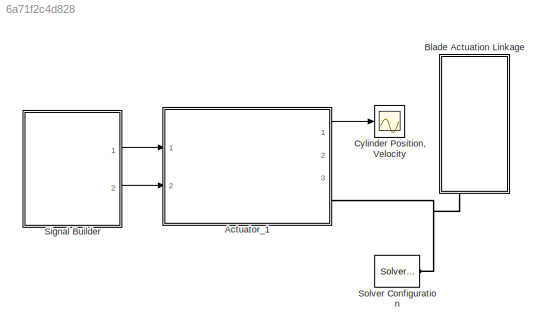
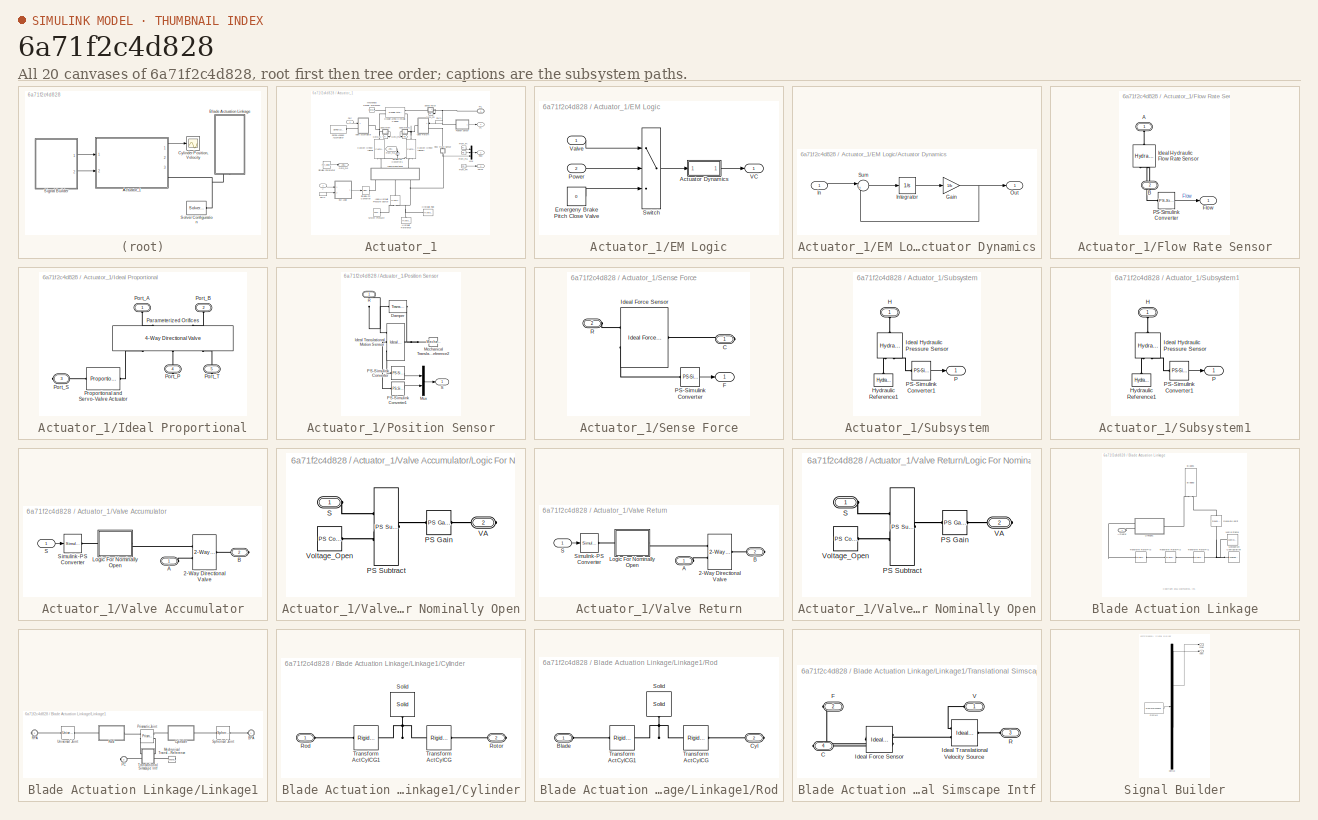
[diagram: thumbnail index - all 20 canvases of the model, root first then tree order]
MODEL slx_6a71f2c4d828
KIND model
CONFIG PostLoadFcn = warning off Simulink:Engine:OutputNotConnected\nwarning off Simulink:Engine:UINotUpdatedDuringRapidAccelSim\n\n\n
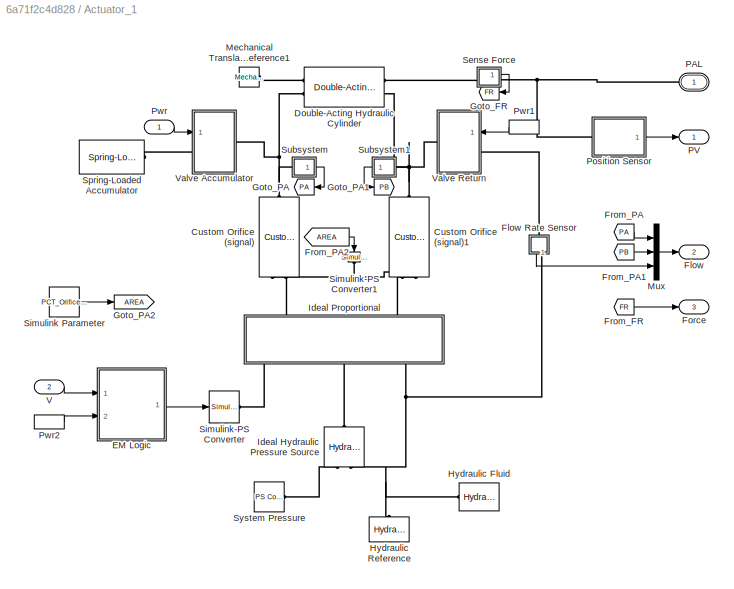
BLOCK [SubSystem] Actuator_1
  FunctionWithSeparateData = off
  MaskHideContents = off
  MinAlgLoopOccurrences = off
  Opaque = off
  Ports = [2, 3, 0, 0, 0, 0, 1]
  PropExecContextOutsideSubsystem = off
  RTWSystemCode = Auto
  RequestExecContextInheritance = off
BLOCK [Reference] Actuator_1/Custom Orifice (signal)  REF=Hydraulic_lib/Custom Orifice
(signal)
  Cd = 0.7
  Cd_unit = 1
  ClassName = CustomOrifice_signal
  ComponentPath = Hydraulic.CustomOrifice_signal
  ComponentVariantNames = CustomOrifice_signal
  ComponentVariants = Hydraulic.CustomOrifice_signal
  LocalVarDescs = |Volumetric flow rate|Pressure|Reynolds number
  LocalVarLogging = [0 0 0]
  LocalVarNames = |q|p|Re
  Ports = [0, 0, 0, 0, 0, 2, 1]
  Re_Log = off
  Recr = 12
  Recr_unit = 1
  SchemaVersion = 1
  SourceBlock = Hydraulic_lib/Custom Orifice\n(signal)
  SourceFile = Hydraulic.CustomOrifice_signal
  SourceType = Custom Orifice\n(signal)
  p_Log = off
  q_Log = off
BLOCK [Reference] Actuator_1/Custom Orifice (signal)1  REF=Hydraulic_lib/Custom Orifice
(signal)
  Cd = 0.7
  Cd_unit = 1
  ClassName = CustomOrifice_signal
  ComponentPath = Hydraulic.CustomOrifice_signal
  ComponentVariantNames = CustomOrifice_signal
  ComponentVariants = Hydraulic.CustomOrifice_signal
  LocalVarDescs = |Volumetric flow rate|Pressure|Reynolds number
  LocalVarLogging = [0 0 0]
  LocalVarNames = |q|p|Re
  Ports = [0, 0, 0, 0, 0, 2, 1]
  Re_Log = off
  Recr = 12
  Recr_unit = 1
  SchemaVersion = 1
  SourceBlock = Hydraulic_lib/Custom Orifice\n(signal)
  SourceFile = Hydraulic.CustomOrifice_signal
  SourceType = Custom Orifice\n(signal)
  p_Log = off
  q_Log = off
BLOCK [Reference] Actuator_1/Double-Acting Hydraulic Cylinder  REF=sh_lib/Hydraulic Cylinders/Double-Acting
Hydraulic Cylinder
  ClassName = cylinder_da
  ComponentPath = sh.cylinders.cylinder_da
  ComponentVariantNames = cylinder_da
  ComponentVariants = sh.cylinders.cylinder_da
  D = WT_Params.Pitch_Actuator.Cylinder.contact_damping
  D_unit = N/(m/s)
  LocalVarLogging = []
  Ports = [0, 0, 0, 0, 0, 2, 2]
  SchemaVersion = 1
  SourceBlock = sh_lib/Hydraulic Cylinders/Double-Acting\nHydraulic Cylinder
  SourceFile = sh.cylinders.cylinder_da
  SourceType = Double-Acting\nHydraulic Cylinder
  area_A = WT_Params.Pitch_Actuator.Cylinder.piston_area
  area_A_unit = m^2
  area_B = WT_Params.Pitch_Actuator.Cylinder.piston_area
  area_B_unit = m^2
  dead_vol_A = 1e-04
  dead_vol_A_unit = m^3
  dead_vol_B = 1e-04
  dead_vol_B_unit = m^3
  init_pos = WT_Params.Pitch_Actuator.Cylinder.initial_disp_from_a
  init_pos_unit = m
  init_pressure_A = 0
  init_pressure_A_unit = Pa
  init_pressure_B = 0
  init_pressure_B_unit = Pa
  k_sh = 1.4
  k_sh_unit = 1
  or = 2
  or_unit = 1
  stiff = WT_Params.Pitch_Actuator.Cylinder.contact_stiffness
  stiff_unit = N/m
  stroke = WT_Params.Pitch_Actuator.Cylinder.stroke
  stroke_unit = m
BLOCK [SubSystem] Actuator_1/EM Logic
  FunctionWithSeparateData = off
  MaskHideContents = off
  MinAlgLoopOccurrences = off
  Opaque = off
  Ports = [2, 1]
  PropExecContextOutsideSubsystem = off
  RTWSystemCode = Auto
  RequestExecContextInheritance = off
BLOCK [SubSystem] Actuator_1/EM Logic/Actuator Dynamics
  FunctionWithSeparateData = off
  MaskHideContents = off
  MinAlgLoopOccurrences = off
  Opaque = off
  Ports = [1, 1]
  PropExecContextOutsideSubsystem = off
  RTWSystemCode = Auto
  RequestExecContextInheritance = off
BLOCK [Gain] Actuator_1/EM Logic/Actuator Dynamics/Gain
  Gain = 1/b
  OutDataTypeStr = Inherit: Inherit via internal rule
  ParamDataTypeStr = Inherit: Inherit via internal rule
  SaturateOnIntegerOverflow = off
BLOCK [Inport] Actuator_1/EM Logic/Actuator Dynamics/In
  IconDisplay = Port number
BLOCK [Integrator] Actuator_1/EM Logic/Actuator Dynamics/Integrator
  InitialCondition = x_initial
  Ports = [1, 1]
BLOCK [Outport] Actuator_1/EM Logic/Actuator Dynamics/Out
  IconDisplay = Port number
BLOCK [Sum] Actuator_1/EM Logic/Actuator Dynamics/Sum
  IconShape = round
  Inputs = |+-
  Ports = [2, 1]
BLOCK [Constant] Actuator_1/EM Logic/Emergeny Brake Pitch Close Valve
  Value = 0
BLOCK [Inport] Actuator_1/EM Logic/Power
  IconDisplay = Port number
  Port = 2
BLOCK [Switch] Actuator_1/EM Logic/Switch
  Criteria = u2 > Threshold
  InputSameDT = off
  SaturateOnIntegerOverflow = off
BLOCK [Outport] Actuator_1/EM Logic/VC
  IconDisplay = Port number
BLOCK [Inport] Actuator_1/EM Logic/Valve
  IconDisplay = Port number
BLOCK [Outport] Actuator_1/Flow
  IconDisplay = Port number
  Port = 2
BLOCK [SubSystem] Actuator_1/Flow Rate Sensor
  FunctionWithSeparateData = off
  MaskHideContents = off
  MinAlgLoopOccurrences = off
  Opaque = off
  Ports = [0, 1, 0, 0, 0, 1, 1]
  PropExecContextOutsideSubsystem = off
  RTWSystemCode = Auto
  RequestExecContextInheritance = off
BLOCK [PMIOPort] Actuator_1/Flow Rate Sensor/A
  Port = 1
  Side = Left
BLOCK [PMIOPort] Actuator_1/Flow Rate Sensor/B
  Port = 2
  Side = Right
BLOCK [Outport] Actuator_1/Flow Rate Sensor/Flow
  IconDisplay = Port number
BLOCK [Reference] Actuator_1/Flow Rate Sensor/Ideal Hydraulic Flow Rate Sensor  REF=fl_lib/Hydraulic/Hydraulic Sensors/Hydraulic Flow Rate
Sensor
  ClassName = sensor_flow_rate
  ComponentPath = foundation.hydraulic.sensors.flow_rate
  ComponentVariantNames = flow_rate
  ComponentVariants = foundation.hydraulic.sensors.flow_rate
  LocalVarDescs = |q|p
  LocalVarLogging = []
  LocalVarNames = |q|p
  Ports = [0, 0, 0, 0, 0, 1, 2]
  SchemaVersion = 1
  SourceBlock = fl_lib/Hydraulic/Hydraulic Sensors/Hydraulic Flow Rate\nSensor
  SourceFile = foundation.hydraulic.sensors.flow_rate
  SourceType = Hydraulic Flow Rate\nSensor
  p_Log = off
  q_Log = off
BLOCK [Reference] Actuator_1/Flow Rate Sensor/PS-Simulink Converter  REF=nesl_utility/PS-Simulink
Converter
  AffineConversion = off
  Frequencies = []
  LeftPortType = input
  PhysicalDomain = network_engine_domain
  Ports = [0, 1, 0, 0, 0, 1]
  PseudoPeriodic = off
  RightPortType = output
  SourceBlock = nesl_utility/PS-Simulink\nConverter
  SourceType = PS-Simulink\nConverter
  SubClassName = ps_output
  Unit = 1
BLOCK [Outport] Actuator_1/Force
  IconDisplay = Port number
  Port = 3
BLOCK [From] Actuator_1/From_FR
  CloseFcn = tagdialog Close
  GotoTag = FR
BLOCK [From] Actuator_1/From_PA
  CloseFcn = tagdialog Close
  GotoTag = PA
BLOCK [From] Actuator_1/From_PA1
  CloseFcn = tagdialog Close
  GotoTag = PB
BLOCK [From] Actuator_1/From_PA2
  CloseFcn = tagdialog Close
  GotoTag = AREA
BLOCK [Goto] Actuator_1/Goto_FR
  GotoTag = FR
BLOCK [Goto] Actuator_1/Goto_PA
  GotoTag = PA
BLOCK [Goto] Actuator_1/Goto_PA1
  GotoTag = PB
BLOCK [Goto] Actuator_1/Goto_PA2
  GotoTag = AREA
BLOCK [Reference] Actuator_1/Hydraulic Fluid  REF=sh_lib/Hydraulic Utilities/Hydraulic Fluid
  ClassName = hydraulic_fluid
  ComponentPath = sh.utilities.hydraulic_fluid
  ComponentVariantNames = hydraulic_fluid
  ComponentVariants = sh.utilities.hydraulic_fluid
  DataSource = 1
  DataSource_unit = 1
  LocalVarLogging = []
  Ports = [0, 0, 0, 0, 0, 0, 1]
  SchemaVersion = 1
  SelFluid = 1
  SelFluid_unit = 1
  SourceBlock = sh_lib/Hydraulic Utilities/Hydraulic Fluid
  SourceFile = sh.utilities.hydraulic_fluid
  SourceType = Hydraulic Fluid
  SysTemp = 60
  SysTemp_unit = c
  TrapAir = 0.005
  TrapAir_unit = 1
  ViscDerFactor = 1
  ViscDerFactor_unit = 1
BLOCK [Reference] Actuator_1/Hydraulic Reference  REF=fl_lib/Hydraulic/Hydraulic Elements/Hydraulic Reference
  ClassName = hydro_reference
  ComponentPath = foundation.hydraulic.elements.reference
  ComponentVariantNames = reference
  ComponentVariants = foundation.hydraulic.elements.reference
  LocalVarDescs = |q
  LocalVarLogging = []
  LocalVarNames = |q
  Ports = [0, 0, 0, 0, 0, 1]
  SchemaVersion = 1
  SourceBlock = fl_lib/Hydraulic/Hydraulic Elements/Hydraulic Reference
  SourceFile = foundation.hydraulic.elements.reference
  SourceType = Hydraulic Reference
  q_Log = off
BLOCK [Reference] Actuator_1/Ideal Hydraulic Pressure Source  REF=fl_lib/Hydraulic/Hydraulic Sources/Hydraulic Pressure
Source
  ClassName = pressure_src
  ComponentPath = foundation.hydraulic.sources.pressure
  ComponentVariantNames = pressure
  ComponentVariants = foundation.hydraulic.sources.pressure
  LocalVarDescs = |Flow rate through the source (m^3/s)|Pressure differential across the source (Pa)|Source power (W)
  LocalVarLogging = [0 0 0]
  LocalVarNames = |flow_rate|pr_differential|power
  Ports = [0, 0, 0, 0, 0, 1, 2]
  SchemaVersion = 1
  SourceBlock = fl_lib/Hydraulic/Hydraulic Sources/Hydraulic Pressure\nSource
  SourceFile = foundation.hydraulic.sources.pressure
  SourceType = Hydraulic Pressure\nSource
  p_Log = off
  q_Log = off
BLOCK [SubSystem] Actuator_1/Ideal Proportional
  FunctionWithSeparateData = off
  MaskHideContents = off
  MinAlgLoopOccurrences = off
  Opaque = off
  Ports = [0, 0, 0, 0, 0, 2, 3]
  PropExecContextOutsideSubsystem = off
  RTWSystemCode = Auto
  RequestExecContextInheritance = off
BLOCK [Reference] Actuator_1/Ideal Proportional/Parameterized Orifices  REF=sh_lib/Valves/Directional Valves/4-Way Directional
Valve
  A_leak = WT_Params.Pitch_Actuator.Valve.leakage_area
  A_leak_unit = m^2
  C_d = 0.7
  C_d_unit = 1
  ClassName = valve_dir_4_way
  ComponentPath = sh.valves.directional_valves.valve_dir_4_way
  ComponentVariantNames = valve_dir_4_way
  ComponentVariants = sh.valves.directional_valves.valve_dir_4_way
  LocalVarLogging = []
  Ports = [0, 0, 0, 0, 0, 2, 3]
  Re_cr = 12
  Re_cr_unit = 1
  SchemaVersion = 1
  SourceBlock = sh_lib/Valves/Directional Valves/4-Way Directional\nValve
  SourceFile = sh.valves.directional_valves.valve_dir_4_way
  SourceType = 4-Way Directional\nValve
  area_max = WT_Params.Pitch_Actuator.Valve.max_area
  area_max_unit = m^2
  area_tab = [  1e-09 2.0352e-07 4.0736e-05 0.00011438 0.00034356 ]
  area_tab_unit = m^2
  extrap_method = 1
  extrap_method_unit = 1
  flow_rate_tab = [  -1e-07 -7.0711e-08 -4.4721e-08 4.4721e-08 7.0711e-08 1e-07 ; -2.0352e-05 -1.4391e-05 -9.1017e-06 9.1017e-06 1.4391e-05 2.0352e-05 ; -0.0040736 -0.0028805 -0.0018218 0.0018218 0.0028805 0.0040736 ; -0.011438 -0.0080879 -0.0051152 0.0051152 0.0080879 0.011438 ; -0.034356 -0.024293 -0.015364 0.015364 0.024293 0.034356 ; ]  <repeated x3 — deduplicated; at blocks: Parameterized Orifices, 2-Way Directional Valve>
  flow_rate_tab_unit = m^3/s
  interp_method = 1
  interp_method_unit = 1
  mdl_type = 1
  mdl_type_unit = 1
  opening_max = WT_Params.Pitch_Actuator.Valve.max_opening
  opening_max_unit = m
  opening_tab = [  -0.002 0 0.002 0.005 0.015 ]
  opening_tab_unit = m
  pressure_tab = [  -1e+07 -5e+06 -2e+06 2e+06 5e+06 1e+07 ]
  pressure_tab_unit = Pa
  x_0_A_T = WT_Params.Pitch_Actuator.Valve.initial_opening_at
  x_0_A_T_unit = m
  x_0_B_T = WT_Params.Pitch_Actuator.Valve.initial_opening_bt
  x_0_B_T_unit = m
  x_0_P_A = WT_Params.Pitch_Actuator.Valve.initial_opening_pa
  x_0_P_A_unit = m
  x_0_P_B = WT_Params.Pitch_Actuator.Valve.initial_opening_pb
  x_0_P_B_unit = m
BLOCK [PMIOPort] Actuator_1/Ideal Proportional/Port_A
  Port = 1
  Side = Left
BLOCK [PMIOPort] Actuator_1/Ideal Proportional/Port_B
  Port = 2
  Side = Left
BLOCK [PMIOPort] Actuator_1/Ideal Proportional/Port_P
  Port = 4
  Side = Right
BLOCK [PMIOPort] Actuator_1/Ideal Proportional/Port_S
  Port = 3
  Side = Right
BLOCK [PMIOPort] Actuator_1/Ideal Proportional/Port_T
  Port = 5
  Side = Right
BLOCK [Reference] Actuator_1/Ideal Proportional/Proportional and Servo-Valve Actuator  REF=sh_lib/Valves/Valve Actuators/Proportional and
Servo-Valve Actuator
  ClassName = act_prop_valve
  ComponentPath = sh.valves.valve_actuators.act_prop_valve
  ComponentVariantNames = act_prop_valve
  ComponentVariants = sh.valves.valve_actuators.act_prop_valve
  LocalVarLogging = []
  Ports = [0, 0, 0, 0, 0, 1, 1]
  SchemaVersion = 1
  SourceBlock = sh_lib/Valves/Valve Actuators/Proportional and\nServo-Valve Actuator
  SourceFile = sh.valves.valve_actuators.act_prop_valve
  SourceType = Proportional and\nServo-Valve Actuator
  gain = WT_Params.Pitch_Actuator.Servo.gain
  gain_unit = 1
  saturation = WT_Params.Pitch_Actuator.Servo.saturation
  saturation_unit = 1
  time_constant = WT_Params.Pitch_Actuator.Servo.time_constant
  time_constant_unit = s
BLOCK [Reference] Actuator_1/Mechanical Translational Reference1  REF=fl_lib/Mechanical/Translational
Elements/Mechanical
Translational
Reference
  ClassName = reference_transl
  ComponentPath = foundation.mechanical.translational.reference
  ComponentVariantNames = reference
  ComponentVariants = foundation.mechanical.translational.reference
  LocalVarDescs = |f
  LocalVarLogging = []
  LocalVarNames = |f
  Ports = [0, 0, 0, 0, 0, 1]
  SchemaVersion = 1
  SourceBlock = fl_lib/Mechanical/Translational\nElements/Mechanical\nTranslational\nReference
  SourceFile = foundation.mechanical.translational.reference
  SourceType = Mechanical\nTranslational\nReference
  Tag = Factory Generic
  f_Log = off
BLOCK [Mux] Actuator_1/Mux
  DisplayOption = bar
  Inputs = 3
  Ports = [3, 1]
BLOCK [PMIOPort] Actuator_1/PAL
  Port = 1
  Side = Right
  Tag = PMCPort
BLOCK [Outport] Actuator_1/PV
  IconDisplay = Port number
BLOCK [SubSystem] Actuator_1/Position Sensor
  FunctionWithSeparateData = off
  MaskHideContents = off
  MinAlgLoopOccurrences = off
  Opaque = off
  Ports = [0, 1, 0, 0, 0, 1]
  PropExecContextOutsideSubsystem = off
  RTWSystemCode = Auto
  RequestExecContextInheritance = off
BLOCK [Reference] Actuator_1/Position Sensor/Damper  REF=fl_lib/Mechanical/Translational
Elements/Translational Damper
  ClassName = damper_transl
  ComponentPath = foundation.mechanical.translational.damper
  ComponentVariantNames = damper
  ComponentVariants = foundation.mechanical.translational.damper
  D = WT_Params.Pitch_Actuator.Cylinder.damping
  D_unit = N/(m/s)
  LocalVarDescs = |Damping force (N)|Damper relative velocity (m/s)|Power dissipated in the damper (W)
  LocalVarLogging = [0 0 0]
  LocalVarNames = |force|rel_velocity|power
  Ports = [0, 0, 0, 0, 0, 1, 1]
  SchemaVersion = 1
  SourceBlock = fl_lib/Mechanical/Translational\nElements/Translational Damper
  SourceFile = foundation.mechanical.translational.damper
  SourceType = Translational Damper
  f_Log = off
  v_Log = off
BLOCK [Reference] Actuator_1/Position Sensor/Ideal Translational Motion Sensor  REF=fl_lib/Mechanical/Mechanical Sensors/Ideal Translational
Motion Sensor
  ClassName = sensor_transl_motion
  ComponentPath = foundation.mechanical.sensors.velocity
  ComponentVariantNames = velocity
  ComponentVariants = foundation.mechanical.sensors.velocity
  LocalVarDescs = |v|f|x
  LocalVarLogging = []
  LocalVarNames = |v|f|x
  Ports = [0, 0, 0, 0, 0, 1, 3]
  SchemaVersion = 1
  SourceBlock = fl_lib/Mechanical/Mechanical Sensors/Ideal Translational\nMotion Sensor
  SourceFile = foundation.mechanical.sensors.velocity
  SourceType = Ideal Translational\nMotion Sensor
  f_Log = off
  offset = WT_Params.Pitch_Actuator.Sensor.initial_position
  offset_unit = m
  v_Log = off
  x_Log = off
BLOCK [Reference] Actuator_1/Position Sensor/Mechanical Translational Reference2  REF=fl_lib/Mechanical/Translational
Elements/Mechanical
Translational
Reference
  ClassName = reference_transl
  ComponentPath = foundation.mechanical.translational.reference
  ComponentVariantNames = reference
  ComponentVariants = foundation.mechanical.translational.reference
  LocalVarDescs = |f
  LocalVarLogging = []
  LocalVarNames = |f
  Ports = [0, 0, 0, 0, 0, 1]
  SchemaVersion = 1
  SourceBlock = fl_lib/Mechanical/Translational\nElements/Mechanical\nTranslational\nReference
  SourceFile = foundation.mechanical.translational.reference
  SourceType = Mechanical\nTranslational\nReference
  Tag = Factory Generic
  f_Log = off
BLOCK [Mux] Actuator_1/Position Sensor/Mux
  DisplayOption = bar
  Inputs = 2
  Ports = [2, 1]
BLOCK [Reference] Actuator_1/Position Sensor/PS-Simulink Converter  REF=nesl_utility/PS-Simulink
Converter
  AffineConversion = off
  Frequencies = []
  LeftPortType = input
  PhysicalDomain = network_engine_domain
  Ports = [0, 1, 0, 0, 0, 1]
  PseudoPeriodic = off
  RightPortType = output
  SourceBlock = nesl_utility/PS-Simulink\nConverter
  SourceType = PS-Simulink\nConverter
  SubClassName = ps_output
  Unit = 1
BLOCK [Reference] Actuator_1/Position Sensor/PS-Simulink Converter1  REF=nesl_utility/PS-Simulink
Converter
  AffineConversion = off
  Frequencies = []
  LeftPortType = input
  PhysicalDomain = network_engine_domain
  Ports = [0, 1, 0, 0, 0, 1]
  PseudoPeriodic = off
  RightPortType = output
  SourceBlock = nesl_utility/PS-Simulink\nConverter
  SourceType = PS-Simulink\nConverter
  SubClassName = ps_output
  Unit = 1
BLOCK [PMIOPort] Actuator_1/Position Sensor/R
  Port = 1
  Side = Left
BLOCK [Outport] Actuator_1/Position Sensor/S
  IconDisplay = Port number
BLOCK [Inport] Actuator_1/Pwr
  IconDisplay = Port number
BLOCK [InportShadow] Actuator_1/Pwr1
  IconDisplay = Port number
  LatchByDelayingOutsideSignal = off
  LatchInputForFeedbackSignals = off
BLOCK [InportShadow] Actuator_1/Pwr2
  IconDisplay = Port number
  LatchByDelayingOutsideSignal = off
  LatchInputForFeedbackSignals = off
BLOCK [SubSystem] Actuator_1/Sense Force
  FunctionWithSeparateData = off
  MaskHideContents = off
  MinAlgLoopOccurrences = off
  Opaque = off
  Ports = [0, 1, 0, 0, 0, 1, 1]
  PropExecContextOutsideSubsystem = off
  RTWSystemCode = Auto
  RequestExecContextInheritance = off
BLOCK [PMIOPort] Actuator_1/Sense Force/C
  Port = 1
  Side = Right
BLOCK [Outport] Actuator_1/Sense Force/F
  IconDisplay = Port number
BLOCK [Reference] Actuator_1/Sense Force/Ideal Force Sensor  REF=fl_lib/Mechanical/Mechanical Sensors/Ideal Force Sensor
  ClassName = sensor_force
  ComponentPath = foundation.mechanical.sensors.force
  ComponentVariantNames = force
  ComponentVariants = foundation.mechanical.sensors.force
  LocalVarDescs = |v|f
  LocalVarLogging = []
  LocalVarNames = |v|f
  Ports = [0, 0, 0, 0, 0, 1, 2]
  SchemaVersion = 1
  SourceBlock = fl_lib/Mechanical/Mechanical Sensors/Ideal Force Sensor
  SourceFile = foundation.mechanical.sensors.force
  SourceType = Ideal Force Sensor
  f_Log = off
  v_Log = off
BLOCK [Reference] Actuator_1/Sense Force/PS-Simulink Converter  REF=nesl_utility/PS-Simulink
Converter
  AffineConversion = off
  Frequencies = []
  LeftPortType = input
  PhysicalDomain = network_engine_domain
  Ports = [0, 1, 0, 0, 0, 1]
  PseudoPeriodic = off
  RightPortType = output
  SourceBlock = nesl_utility/PS-Simulink\nConverter
  SourceType = PS-Simulink\nConverter
  SubClassName = ps_output
  Unit = 1
BLOCK [PMIOPort] Actuator_1/Sense Force/R
  Port = 2
  Side = Left
BLOCK [Constant] Actuator_1/Simulink Parameter
  Value = PCT_Orifice_Area
BLOCK [Reference] Actuator_1/Simulink-PS Converter  REF=nesl_utility/Simulink-PS
Converter
  AffineConversion = off
  Frequencies = []
  InputFilterTimeConstant = .001
  InputFiltering = off
  LeftPortType = input
  NoiseDistribution = none
  NoiseParameters = []
  PhysicalDomain = network_engine_domain
  Ports = [1, 0, 0, 0, 0, 0, 1]
  PseudoPeriodic = off
  RightPortType = output
  SimscapeFilterOrder = 1
  SourceBlock = nesl_utility/Simulink-PS\nConverter
  SourceType = Simulink-PS\nConverter
  SubClassName = ps_input
  UdotUserProvided = 0
  Unit = 1
BLOCK [Reference] Actuator_1/Simulink-PS Converter1  REF=nesl_utility/Simulink-PS
Converter
  AffineConversion = off
  Frequencies = []
  InputFilterTimeConstant = .001
  InputFiltering = off
  LeftPortType = input
  NoiseDistribution = none
  NoiseParameters = []
  PhysicalDomain = network_engine_domain
  Ports = [1, 0, 0, 0, 0, 0, 1]
  PseudoPeriodic = off
  RightPortType = output
  SimscapeFilterOrder = 1
  SourceBlock = nesl_utility/Simulink-PS\nConverter
  SourceType = Simulink-PS\nConverter
  SubClassName = ps_input
  UdotUserProvided = 0
  Unit = 1
BLOCK [Reference] Actuator_1/Spring-Loaded Accumulator  REF=sh_lib/Accumulators/Spring-Loaded
Accumulator
  ClassName = accumulator_spr
  ComponentPath = sh.accumulators.accumulator_spr
  ComponentVariantNames = accumulator_spr
  ComponentVariants = sh.accumulators.accumulator_spr
  LocalVarDescs = |Accumulator flow rate (m^3/s)|Fluid pressure (Pa)|Initial fluid volume (m^3)
  LocalVarLogging = [0 0 0]
  LocalVarNames = |flow_rate|pr_fluid|fluid_volume
  Ports = [0, 0, 0, 0, 0, 0, 1]
  SchemaVersion = 1
  SourceBlock = sh_lib/Accumulators/Spring-Loaded\nAccumulator
  SourceFile = sh.accumulators.accumulator_spr
  SourceType = Spring-Loaded\nAccumulator
  capacity = WT_Params.Pitch_Actuator.Accumulator.capacity
  capacity_unit = m^3
  flow_rate_Log = off
  fluid_volume_Log = off
  pr_fluid_Log = off
  pr_max = WT_Params.Pitch_Actuator.Accumulator.maximum_pressure
  pr_max_unit = Pa
  pr_preload = WT_Params.Pitch_Actuator.Accumulator.preload_pressure
  pr_preload_unit = Pa
  str_compl = 4e-15
  str_compl_unit = m^3/Pa
  v_init = WT_Params.Pitch_Actuator.Accumulator.initial_volume
  v_init_unit = m^3
BLOCK [SubSystem] Actuator_1/Subsystem
  FunctionWithSeparateData = off
  MaskHideContents = off
  MinAlgLoopOccurrences = off
  Opaque = off
  Ports = [0, 1, 0, 0, 0, 1]
  PropExecContextOutsideSubsystem = off
  RTWSystemCode = Auto
  RequestExecContextInheritance = off
BLOCK [PMIOPort] Actuator_1/Subsystem/H
  Port = 1
  Side = Left
BLOCK [Reference] Actuator_1/Subsystem/Hydraulic Reference1  REF=fl_lib/Hydraulic/Hydraulic Elements/Hydraulic Reference
  ClassName = hydro_reference
  ComponentPath = foundation.hydraulic.elements.reference
  ComponentVariantNames = reference
  ComponentVariants = foundation.hydraulic.elements.reference
  LocalVarDescs = |q
  LocalVarLogging = []
  LocalVarNames = |q
  Ports = [0, 0, 0, 0, 0, 1]
  SchemaVersion = 1
  SourceBlock = fl_lib/Hydraulic/Hydraulic Elements/Hydraulic Reference
  SourceFile = foundation.hydraulic.elements.reference
  SourceType = Hydraulic Reference
  q_Log = off
BLOCK [Reference] Actuator_1/Subsystem/Ideal Hydraulic Pressure Sensor  REF=fl_lib/Hydraulic/Hydraulic Sensors/Hydraulic Pressure
Sensor
  ClassName = sensor_pressure
  ComponentPath = foundation.hydraulic.sensors.pressure
  ComponentVariantNames = pressure
  ComponentVariants = foundation.hydraulic.sensors.pressure
  LocalVarDescs = |q|p
  LocalVarLogging = []
  LocalVarNames = |q|p
  Ports = [0, 0, 0, 0, 0, 1, 2]
  SchemaVersion = 1
  SourceBlock = fl_lib/Hydraulic/Hydraulic Sensors/Hydraulic Pressure\nSensor
  SourceFile = foundation.hydraulic.sensors.pressure
  SourceType = Hydraulic Pressure\nSensor
  p_Log = off
  q_Log = off
BLOCK [Outport] Actuator_1/Subsystem/P
  IconDisplay = Port number
BLOCK [Reference] Actuator_1/Subsystem/PS-Simulink Converter1  REF=nesl_utility/PS-Simulink
Converter
  AffineConversion = off
  Frequencies = []
  LeftPortType = input
  PhysicalDomain = network_engine_domain
  Ports = [0, 1, 0, 0, 0, 1]
  PseudoPeriodic = off
  RightPortType = output
  SourceBlock = nesl_utility/PS-Simulink\nConverter
  SourceType = PS-Simulink\nConverter
  SubClassName = ps_output
  Unit = 1
BLOCK [SubSystem] Actuator_1/Subsystem1
  FunctionWithSeparateData = off
  MaskHideContents = off
  MinAlgLoopOccurrences = off
  Opaque = off
  Ports = [0, 1, 0, 0, 0, 1]
  PropExecContextOutsideSubsystem = off
  RTWSystemCode = Auto
  RequestExecContextInheritance = off
BLOCK [PMIOPort] Actuator_1/Subsystem1/H
  Port = 1
  Side = Left
BLOCK [Reference] Actuator_1/Subsystem1/Hydraulic Reference1  REF=fl_lib/Hydraulic/Hydraulic Elements/Hydraulic Reference
  ClassName = hydro_reference
  ComponentPath = foundation.hydraulic.elements.reference
  ComponentVariantNames = reference
  ComponentVariants = foundation.hydraulic.elements.reference
  LocalVarDescs = |q
  LocalVarLogging = []
  LocalVarNames = |q
  Ports = [0, 0, 0, 0, 0, 1]
  SchemaVersion = 1
  SourceBlock = fl_lib/Hydraulic/Hydraulic Elements/Hydraulic Reference
  SourceFile = foundation.hydraulic.elements.reference
  SourceType = Hydraulic Reference
  q_Log = off
BLOCK [Reference] Actuator_1/Subsystem1/Ideal Hydraulic Pressure Sensor  REF=fl_lib/Hydraulic/Hydraulic Sensors/Hydraulic Pressure
Sensor
  ClassName = sensor_pressure
  ComponentPath = foundation.hydraulic.sensors.pressure
  ComponentVariantNames = pressure
  ComponentVariants = foundation.hydraulic.sensors.pressure
  LocalVarDescs = |q|p
  LocalVarLogging = []
  LocalVarNames = |q|p
  Ports = [0, 0, 0, 0, 0, 1, 2]
  SchemaVersion = 1
  SourceBlock = fl_lib/Hydraulic/Hydraulic Sensors/Hydraulic Pressure\nSensor
  SourceFile = foundation.hydraulic.sensors.pressure
  SourceType = Hydraulic Pressure\nSensor
  p_Log = off
  q_Log = off
BLOCK [Outport] Actuator_1/Subsystem1/P
  IconDisplay = Port number
BLOCK [Reference] Actuator_1/Subsystem1/PS-Simulink Converter1  REF=nesl_utility/PS-Simulink
Converter
  AffineConversion = off
  Frequencies = []
  LeftPortType = input
  PhysicalDomain = network_engine_domain
  Ports = [0, 1, 0, 0, 0, 1]
  PseudoPeriodic = off
  RightPortType = output
  SourceBlock = nesl_utility/PS-Simulink\nConverter
  SourceType = PS-Simulink\nConverter
  SubClassName = ps_output
  Unit = 1
BLOCK [Reference] Actuator_1/System Pressure  REF=fl_lib/Physical Signals/Sources/PS Constant
  ClassName = ps_constant
  ComponentPath = foundation.physical_signal.sources.constant
  ComponentVariantNames = constant
  ComponentVariants = foundation.physical_signal.sources.constant
  LocalVarLogging = []
  Ports = [0, 0, 0, 0, 0, 0, 1]
  SchemaVersion = 1
  SourceBlock = fl_lib/Physical Signals/Sources/PS Constant
  SourceFile = foundation.physical_signal.sources.constant
  SourceType = PS Constant
  constant = WT_Params.Pitch_Actuator.hydraulic_pressure
  constant_unit = 1
BLOCK [Inport] Actuator_1/V
  IconDisplay = Port number
  Port = 2
BLOCK [SubSystem] Actuator_1/Valve Accumulator
  FunctionWithSeparateData = off
  MaskHideContents = off
  MinAlgLoopOccurrences = off
  Opaque = off
  Ports = [1, 0, 0, 0, 0, 1, 1]
  PropExecContextOutsideSubsystem = off
  RTWSystemCode = Auto
  RequestExecContextInheritance = off
BLOCK [Reference] Actuator_1/Valve Accumulator/2-Way Directional Valve  REF=sh_lib/Valves/Directional Valves/2-Way Directional
Valve
  A_leak = 1e-12
  A_leak_unit = m^2
  C_d = 0.7
  C_d_unit = 1
  ClassName = valve_dir_2_way
  ComponentPath = sh.valves.directional_valves.valve_dir_2_way
  ComponentVariantNames = valve_dir_2_way
  ComponentVariants = sh.valves.directional_valves.valve_dir_2_way
  LocalVarLogging = []
  Ports = [0, 0, 0, 0, 0, 2, 1]
  Re_cr = 12
  Re_cr_unit = 1
  SchemaVersion = 1
  SourceBlock = sh_lib/Valves/Directional Valves/2-Way Directional\nValve
  SourceFile = sh.valves.directional_valves.valve_dir_2_way
  SourceType = 2-Way Directional\nValve
  area_max = WT_Params.Pitch_Actuator.Emergency_Pitch_Valve.max_area
  area_max_unit = m^2
  area_tab = [  1e-09 2.0352e-07 4.0736e-05 0.00011438 0.00034356 ]
  area_tab_unit = m^2
  extrap_method = 1
  extrap_method_unit = 1
  flow_rate_tab_unit = m^3/s
  interp_method = 1
  interp_method_unit = 1
  mdl_type = 1
  mdl_type_unit = 1
  opening_max = 0.005
  opening_max_unit = m
  opening_tab = [  -0.002 0 0.002 0.005 0.015 ]
  opening_tab_unit = m
  pressure_tab = [  -1e+07 -5e+06 -2e+06 2e+06 5e+06 1e+07 ]
  pressure_tab_unit = Pa
  x_0 = 0
  x_0_unit = m
BLOCK [PMIOPort] Actuator_1/Valve Accumulator/A
  Port = 1
  Side = Left
BLOCK [PMIOPort] Actuator_1/Valve Accumulator/B
  Port = 2
  Side = Right
BLOCK [SubSystem] Actuator_1/Valve Accumulator/Logic For Nominally Open
  FunctionWithSeparateData = off
  MaskHideContents = off
  MinAlgLoopOccurrences = off
  Opaque = off
  Ports = [0, 0, 0, 0, 0, 1, 1]
  PropExecContextOutsideSubsystem = off
  RTWSystemCode = Auto
  RequestExecContextInheritance = off
BLOCK [Reference] Actuator_1/Valve Accumulator/Logic For Nominally Open/PS Gain  REF=fl_lib/Physical Signals/Functions/PS Gain
  ClassName = ps_gain
  ComponentPath = foundation.physical_signal.functions.gain
  ComponentVariantNames = gain
  ComponentVariants = foundation.physical_signal.functions.gain
  LocalVarLogging = []
  Ports = [0, 0, 0, 0, 0, 1, 1]
  SchemaVersion = 1
  SourceBlock = fl_lib/Physical Signals/Functions/PS Gain
  SourceFile = foundation.physical_signal.functions.gain
  SourceType = PS Gain
  gain = -1
  gain_unit = 1
BLOCK [Reference] Actuator_1/Valve Accumulator/Logic For Nominally Open/PS Subtract  REF=fl_lib/Physical Signals/Functions/PS Subtract
  ClassName = ps_subtract
  ComponentPath = foundation.physical_signal.functions.subtract
  ComponentVariantNames = subtract
  ComponentVariants = foundation.physical_signal.functions.subtract
  LocalVarLogging = []
  Ports = [0, 0, 0, 0, 0, 2, 1]
  SchemaVersion = 1
  SourceBlock = fl_lib/Physical Signals/Functions/PS Subtract
  SourceFile = foundation.physical_signal.functions.subtract
  SourceType = PS Subtract
BLOCK [PMIOPort] Actuator_1/Valve Accumulator/Logic For Nominally Open/S
  Port = 1
  Side = Left
BLOCK [PMIOPort] Actuator_1/Valve Accumulator/Logic For Nominally Open/VA
  Port = 2
  Side = Right
BLOCK [Reference] Actuator_1/Valve Accumulator/Logic For Nominally Open/Voltage_Open  REF=fl_lib/Physical Signals/Sources/PS Constant
  ClassName = ps_constant
  ComponentPath = foundation.physical_signal.sources.constant
  ComponentVariantNames = constant
  ComponentVariants = foundation.physical_signal.sources.constant
  LocalVarLogging = []
  Ports = [0, 0, 0, 0, 0, 0, 1]
  SchemaVersion = 1
  SourceBlock = fl_lib/Physical Signals/Sources/PS Constant
  SourceFile = foundation.physical_signal.sources.constant
  SourceType = PS Constant
  constant = 24
  constant_unit = 1
BLOCK [Inport] Actuator_1/Valve Accumulator/S
  IconDisplay = Port number
BLOCK [Reference] Actuator_1/Valve Accumulator/Simulink-PS Converter  REF=nesl_utility/Simulink-PS
Converter
  AffineConversion = off
  Frequencies = []
  InputFilterTimeConstant = .001
  InputFiltering = off
  LeftPortType = input
  NoiseDistribution = none
  NoiseParameters = []
  PhysicalDomain = network_engine_domain
  Ports = [1, 0, 0, 0, 0, 0, 1]
  PseudoPeriodic = off
  RightPortType = output
  SimscapeFilterOrder = 1
  SourceBlock = nesl_utility/Simulink-PS\nConverter
  SourceType = Simulink-PS\nConverter
  SubClassName = ps_input
  UdotUserProvided = 0
  Unit = 1
BLOCK [SubSystem] Actuator_1/Valve Return
  FunctionWithSeparateData = off
  MaskHideContents = off
  MinAlgLoopOccurrences = off
  Opaque = off
  Ports = [1, 0, 0, 0, 0, 1, 1]
  PropExecContextOutsideSubsystem = off
  RTWSystemCode = Auto
  RequestExecContextInheritance = off
BLOCK [Reference] Actuator_1/Valve Return/2-Way Directional Valve  REF=sh_lib/Valves/Directional Valves/2-Way Directional
Valve
  A_leak = 1e-12
  A_leak_unit = m^2
  C_d = 0.7
  C_d_unit = 1
  ClassName = valve_dir_2_way
  ComponentPath = sh.valves.directional_valves.valve_dir_2_way
  ComponentVariantNames = valve_dir_2_way
  ComponentVariants = sh.valves.directional_valves.valve_dir_2_way
  LocalVarLogging = []
  Ports = [0, 0, 0, 0, 0, 2, 1]
  Re_cr = 12
  Re_cr_unit = 1
  SchemaVersion = 1
  SourceBlock = sh_lib/Valves/Directional Valves/2-Way Directional\nValve
  SourceFile = sh.valves.directional_valves.valve_dir_2_way
  SourceType = 2-Way Directional\nValve
  area_max = WT_Params.Pitch_Actuator.Emergency_Pitch_Valve.max_area
  area_max_unit = m^2
  area_tab = [  1e-09 2.0352e-07 4.0736e-05 0.00011438 0.00034356 ]
  area_tab_unit = m^2
  extrap_method = 1
  extrap_method_unit = 1
  flow_rate_tab_unit = m^3/s
  interp_method = 1
  interp_method_unit = 1
  mdl_type = 1
  mdl_type_unit = 1
  opening_max = 0.005
  opening_max_unit = m
  opening_tab = [  -0.002 0 0.002 0.005 0.015 ]
  opening_tab_unit = m
  pressure_tab = [  -1e+07 -5e+06 -2e+06 2e+06 5e+06 1e+07 ]
  pressure_tab_unit = Pa
  x_0 = 0
  x_0_unit = m
BLOCK [PMIOPort] Actuator_1/Valve Return/A
  Port = 1
  Side = Left
BLOCK [PMIOPort] Actuator_1/Valve Return/B
  Port = 2
  Side = Right
BLOCK [SubSystem] Actuator_1/Valve Return/Logic For Nominally Open
  FunctionWithSeparateData = off
  MaskHideContents = off
  MinAlgLoopOccurrences = off
  Opaque = off
  Ports = [0, 0, 0, 0, 0, 1, 1]
  PropExecContextOutsideSubsystem = off
  RTWSystemCode = Auto
  RequestExecContextInheritance = off
BLOCK [Reference] Actuator_1/Valve Return/Logic For Nominally Open/PS Gain  REF=fl_lib/Physical Signals/Functions/PS Gain
  ClassName = ps_gain
  ComponentPath = foundation.physical_signal.functions.gain
  ComponentVariantNames = gain
  ComponentVariants = foundation.physical_signal.functions.gain
  LocalVarLogging = []
  Ports = [0, 0, 0, 0, 0, 1, 1]
  SchemaVersion = 1
  SourceBlock = fl_lib/Physical Signals/Functions/PS Gain
  SourceFile = foundation.physical_signal.functions.gain
  SourceType = PS Gain
  gain = -1
  gain_unit = 1
BLOCK [Reference] Actuator_1/Valve Return/Logic For Nominally Open/PS Subtract  REF=fl_lib/Physical Signals/Functions/PS Subtract
  ClassName = ps_subtract
  ComponentPath = foundation.physical_signal.functions.subtract
  ComponentVariantNames = subtract
  ComponentVariants = foundation.physical_signal.functions.subtract
  LocalVarLogging = []
  Ports = [0, 0, 0, 0, 0, 2, 1]
  SchemaVersion = 1
  SourceBlock = fl_lib/Physical Signals/Functions/PS Subtract
  SourceFile = foundation.physical_signal.functions.subtract
  SourceType = PS Subtract
BLOCK [PMIOPort] Actuator_1/Valve Return/Logic For Nominally Open/S
  Port = 1
  Side = Left
BLOCK [PMIOPort] Actuator_1/Valve Return/Logic For Nominally Open/VA
  Port = 2
  Side = Right
BLOCK [Reference] Actuator_1/Valve Return/Logic For Nominally Open/Voltage_Open  REF=fl_lib/Physical Signals/Sources/PS Constant
  ClassName = ps_constant
  ComponentPath = foundation.physical_signal.sources.constant
  ComponentVariantNames = constant
  ComponentVariants = foundation.physical_signal.sources.constant
  LocalVarLogging = []
  Ports = [0, 0, 0, 0, 0, 0, 1]
  SchemaVersion = 1
  SourceBlock = fl_lib/Physical Signals/Sources/PS Constant
  SourceFile = foundation.physical_signal.sources.constant
  SourceType = PS Constant
  constant = 24
  constant_unit = 1
BLOCK [Inport] Actuator_1/Valve Return/S
  IconDisplay = Port number
BLOCK [Reference] Actuator_1/Valve Return/Simulink-PS Converter  REF=nesl_utility/Simulink-PS
Converter
  AffineConversion = off
  Frequencies = []
  InputFilterTimeConstant = .001
  InputFiltering = off
  LeftPortType = input
  NoiseDistribution = none
  NoiseParameters = []
  PhysicalDomain = network_engine_domain
  Ports = [1, 0, 0, 0, 0, 0, 1]
  PseudoPeriodic = off
  RightPortType = output
  SimscapeFilterOrder = 1
  SourceBlock = nesl_utility/Simulink-PS\nConverter
  SourceType = Simulink-PS\nConverter
  SubClassName = ps_input
  UdotUserProvided = 0
  Unit = 1
BLOCK [SubSystem] Blade Actuation Linkage
  FunctionWithSeparateData = off
  MaskHideContents = off
  MinAlgLoopOccurrences = off
  Opaque = off
  Ports = [0, 0, 0, 0, 0, 1]
  PropExecContextOutsideSubsystem = off
  RTWSystemCode = Auto
  RequestExecContextInheritance = off
BLOCK [PMIOPort] Blade Actuation Linkage/Actuator
  Port = 1
  Side = Left
BLOCK [Reference] Blade Actuation Linkage/Blade1  REF=Blades_Lib/Blades/Blade3
  Ports = [0, 0, 0, 0, 0, 2, 1]
  SourceBlock = Blades_Lib/Blades/Blade3
  SourceType = SubSystem
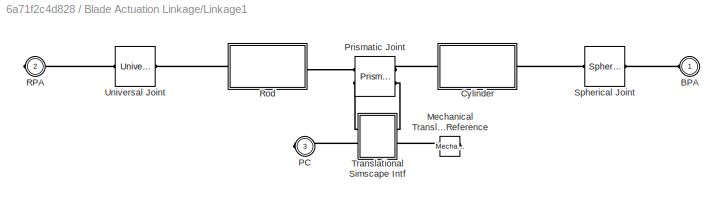
BLOCK [SubSystem] Blade Actuation Linkage/Linkage1
  FunctionWithSeparateData = off
  MaskHideContents = off
  MinAlgLoopOccurrences = off
  Opaque = off
  Ports = [0, 0, 0, 0, 0, 1, 2]
  PropExecContextOutsideSubsystem = off
  RTWSystemCode = Auto
  RequestExecContextInheritance = off
BLOCK [PMIOPort] Blade Actuation Linkage/Linkage1/BPA
  Port = 1
  Side = Left
BLOCK [SubSystem] Blade Actuation Linkage/Linkage1/Cylinder
  FunctionWithSeparateData = off
  MaskHideContents = off
  MinAlgLoopOccurrences = off
  Opaque = off
  Ports = [0, 0, 0, 0, 0, 1, 1]
  PropExecContextOutsideSubsystem = off
  RTWSystemCode = Auto
  RequestExecContextInheritance = off
BLOCK [PMIOPort] Blade Actuation Linkage/Linkage1/Cylinder/Rod
  Port = 1
  Side = Left
BLOCK [PMIOPort] Blade Actuation Linkage/Linkage1/Cylinder/Rotor
  Port = 2
  Side = Right
BLOCK [Reference] Blade Actuation Linkage/Linkage1/Cylinder/Solid  REF=sm_lib/Body Elements/Solid
  BlockFunction = simmechanics.library.body_elements.solid
  BrickDimensionUnits = m
  BrickDimensions = [(WT_Params.Nacelle.length-WT_Params.Nacelle.Yaw_Ctr_Offset.x) WT_Params.Nacelle.Yaw_Ctr_Offset.y WT_Params.Nacelle.Yaw_Ctr_Offset.y]*2
  CenterOfMass = [0 0 0]
  CenterOfMassUnits = m
  ClassName = Solid
  CylinderLength = WT_Params.Pitch_Actuator.cylinder_length
  CylinderLengthUnits = m
  CylinderRadius = WT_Params.Pitch_Actuator.Geometry.outer_radius
  CylinderRadiusUnits = m
  Density = 1000
  DensityBased = on
  DensityUnits = kg/(m^3)
  EllipsoidRadii = [1 1 1]
  EllipsoidRadiiUnits = m
  ExtGeomFileUnits = m
  ExtrusionCrossSection = [1 1; -1 1; -1 -1; 1 -1]
  ExtrusionCrossSectionUnits = m
  ExtrusionLength = 1
  ExtrusionLengthUnits = m
  GeometryShape = Cylinder
  GraphicAmbientColor = [0.15 0.15 0.15 1.0]
  GraphicDiffuseColor = [0.2 0.2 1.0]
  GraphicEmissiveColor = [0.0 0.0 0.0 1.0]
  GraphicOpacity = 1.0
  GraphicShininess = 75
  GraphicSpecularColor = [0.5 0.5 0.5 1.0]
  GraphicType = FromGeometry
  GraphicVisPropType = SimpleVisualProperties
  InertiaType = Custom
  MarkerShape = Sphere
  MarkerSize = 10
  MarkerSizeUnits = m
  Mass = WT_Params.Pitch_Actuator.cylinder_mass
  MassUnits = kg
  MomentsOfInertia = [WT_Params.Pitch_Actuator.cylinder_inertia(1,1) WT_Params.Pitch_Actuator.cylinder_inertia(3,3) WT_Params.Pitch_Actuator.cylinder_inertia(2,2)]
  MomentsOfInertiaUnits = kg*m^2
  PolygonNumSides = 3
  PolygonOuterRadius = 1
  PolygonOuterRadiusUnits = m
  Ports = [0, 0, 0, 0, 0, 0, 1]
  ProductsOfInertia = [0 0 0]
  ProductsOfInertiaUnits = kg*m^2
  RectangleSize = [1 1]
  RectangleSizeUnits = m
  RevolutionAngle = 180
  RevolutionAngleUnits = deg
  RevolutionCrossSection = [1 1; 1 -1; 2 -1; 2 1]
  RevolutionCrossSectionUnits = m
  RevolutionExtent = Full
  SourceBlock = sm_lib/Body Elements/Solid
  SourceType = Solid
  SphereRadius = 1
  SphereRadiusUnits = m
BLOCK [Reference] Blade Actuation Linkage/Linkage1/Cylinder/Transform ActCylCG  REF=sm_lib/Frames and
 Transforms/Rigid 
Transform
  BaseAlignAxisA = +Y
  BaseAlignAxisB = +Z
  BlockFunction = simmechanics.library.frames_transforms.rigid_transform
  ClassName = RigidTransform
  FollAlignAxisA = +X
  FollAlignAxisB = +Y
  Ports = [0, 0, 0, 0, 0, 1, 1]
  RotationAngle = 0
  RotationAngleUnits = deg
  RotationArbitraryAxis = [0 0 1]
  RotationMethod = None
  RotationStandardAxis = +Z
  SourceBlock = sm_lib/Frames and\n Transforms/Rigid \nTransform
  SourceType = Rigid Transform
  TranslationCartesianOffset = [0 0 0]
  TranslationLengthUnit = m
  TranslationMethod = StandardAxis
  TranslationROffset = 0
  TranslationROffsetUnits = m
  TranslationStandardAxis = +Z
  TranslationStandardOffset = WT_Params.Pitch_Actuator.cylinder_length/2
  TranslationThetaOffset = 0
  TranslationThetaOffsetUnits = deg
  TranslationZOffset = 0
  TranslationZOffsetUnits = m
BLOCK [Reference] Blade Actuation Linkage/Linkage1/Cylinder/Transform ActCylCG1  REF=sm_lib/Frames and
 Transforms/Rigid 
Transform
  BaseAlignAxisA = +Y
  BaseAlignAxisB = +Z
  BlockFunction = simmechanics.library.frames_transforms.rigid_transform
  ClassName = RigidTransform
  FollAlignAxisA = +X
  FollAlignAxisB = +Y
  Ports = [0, 0, 0, 0, 0, 1, 1]
  RotationAngle = 0
  RotationAngleUnits = deg
  RotationArbitraryAxis = [0 0 1]
  RotationMethod = None
  RotationStandardAxis = +Z
  SourceBlock = sm_lib/Frames and\n Transforms/Rigid \nTransform
  SourceType = Rigid Transform
  TranslationCartesianOffset = [0 0 0]
  TranslationLengthUnit = m
  TranslationMethod = StandardAxis
  TranslationROffset = 0
  TranslationROffsetUnits = m
  TranslationStandardAxis = +Z
  TranslationStandardOffset = WT_Params.Pitch_Actuator.cylinder_length/2
  TranslationThetaOffset = 0
  TranslationThetaOffsetUnits = deg
  TranslationZOffset = 0
  TranslationZOffsetUnits = m
BLOCK [Reference] Blade Actuation Linkage/Linkage1/Mechanical Translational Reference  REF=fl_lib/Mechanical/Translational
Elements/Mechanical
Translational
Reference
  ClassName = reference
  ComponentPath = foundation.mechanical.translational.reference
  ComponentVariantNames = reference
  ComponentVariants = foundation.mechanical.translational.reference
  LocalVarDescs = |f
  LocalVarLogging = 0
  LocalVarNames = |f
  Ports = [0, 0, 0, 0, 0, 1]
  SchemaVersion = 1
  SourceBlock = fl_lib/Mechanical/Translational\nElements/Mechanical\nTranslational\nReference
  SourceFile = foundation.mechanical.translational.reference
  SourceType = Mechanical\nTranslational\nReference
  f_Log = off
BLOCK [PMIOPort] Blade Actuation Linkage/Linkage1/PC
  Port = 3
  Side = Right
BLOCK [Reference] Blade Actuation Linkage/Linkage1/Prismatic  Joint  REF=sm_lib/Joints/Prismatic 
Joint
  ActuationMode = TorqueForceActuation
  BlockFunction = simmechanics.library.joints.prismatic_joint
  ClassName = PrismaticJoint
  ConstraintWrenchDir = FollowerOnBase
  ConstraintWrenchFrame = BaseFrame
  DampingCoefficient = 0
  DampingCoefficientUnits = N/(m/s)
  EquilibriumPosition = 0
  EquilibriumPositionUnits = m
  Ports = [0, 0, 0, 0, 0, 2, 2]
  PositionTargetPriority = High
  PositionTargetSpecify = off
  PositionTargetValue = 0
  PositionTargetValueUnits = m
  SenseAcceleration = off
  SenseConstraintForceX = off
  SenseConstraintForceY = off
  SenseConstraintForceZ = off
  SenseConstraintTorqueX = off
  SenseConstraintTorqueY = off
  SenseConstraintTorqueZ = off
  SensePosition = off
  SenseTorqueForce = off
  SenseVelocity = on
  SourceBlock = sm_lib/Joints/Prismatic \nJoint
  SourceType = Prismatic Joint
  SpringStiffness = 0
  SpringStiffnessUnits = N/m
  VelocityTargetPriority = High
  VelocityTargetSpecify = off
  VelocityTargetValue = 0
  VelocityTargetValueUnits = m/s
BLOCK [PMIOPort] Blade Actuation Linkage/Linkage1/RPA
  Port = 2
  Side = Right
BLOCK [SubSystem] Blade Actuation Linkage/Linkage1/Rod
  FunctionWithSeparateData = off
  MaskHideContents = off
  MinAlgLoopOccurrences = off
  Opaque = off
  Ports = [0, 0, 0, 0, 0, 1, 1]
  PropExecContextOutsideSubsystem = off
  RTWSystemCode = Auto
  RequestExecContextInheritance = off
BLOCK [PMIOPort] Blade Actuation Linkage/Linkage1/Rod/Blade
  Port = 1
  Side = Left
BLOCK [PMIOPort] Blade Actuation Linkage/Linkage1/Rod/Cyl
  Port = 2
  Side = Right
BLOCK [Reference] Blade Actuation Linkage/Linkage1/Rod/Solid  REF=sm_lib/Body Elements/Solid
  BlockFunction = simmechanics.library.body_elements.solid
  BrickDimensionUnits = m
  BrickDimensions = [(WT_Params.Nacelle.length-WT_Params.Nacelle.Yaw_Ctr_Offset.x) WT_Params.Nacelle.Yaw_Ctr_Offset.y WT_Params.Nacelle.Yaw_Ctr_Offset.y]*2
  CenterOfMass = [0 0 0]
  CenterOfMassUnits = m
  ClassName = Solid
  CylinderLength = WT_Params.Pitch_Actuator.cylinder_length
  CylinderLengthUnits = m
  CylinderRadius = WT_Params.Pitch_Actuator.Geometry.inner_radius
  CylinderRadiusUnits = m
  Density = 1000
  DensityBased = on
  DensityUnits = kg/(m^3)
  EllipsoidRadii = [1 1 1]
  EllipsoidRadiiUnits = m
  ExtGeomFileUnits = m
  ExtrusionCrossSection = [1 1; -1 1; -1 -1; 1 -1]
  ExtrusionCrossSectionUnits = m
  ExtrusionLength = 1
  ExtrusionLengthUnits = m
  GeometryShape = Cylinder
  GraphicAmbientColor = [0.15 0.15 0.15 1.0]
  GraphicDiffuseColor = [0.4 0.4 0.4]
  GraphicEmissiveColor = [0.0 0.0 0.0 1.0]
  GraphicOpacity = 1.0
  GraphicShininess = 75
  GraphicSpecularColor = [0.5 0.5 0.5 1.0]
  GraphicType = FromGeometry
  GraphicVisPropType = SimpleVisualProperties
  InertiaType = Custom
  MarkerShape = Sphere
  MarkerSize = 10
  MarkerSizeUnits = m
  Mass = WT_Params.Pitch_Actuator.cylinder_mass
  MassUnits = kg
  MomentsOfInertia = [WT_Params.Pitch_Actuator.rod_inertia(1,1) WT_Params.Pitch_Actuator.rod_inertia(3,3) WT_Params.Pitch_Actuator.rod_inertia(2,2)]
  MomentsOfInertiaUnits = kg*m^2
  PolygonNumSides = 3
  PolygonOuterRadius = 1
  PolygonOuterRadiusUnits = m
  Ports = [0, 0, 0, 0, 0, 0, 1]
  ProductsOfInertia = [0 0 0]
  ProductsOfInertiaUnits = kg*m^2
  RectangleSize = [1 1]
  RectangleSizeUnits = m
  RevolutionAngle = 180
  RevolutionAngleUnits = deg
  RevolutionCrossSection = [1 1; 1 -1; 2 -1; 2 1]
  RevolutionCrossSectionUnits = m
  RevolutionExtent = Full
  SourceBlock = sm_lib/Body Elements/Solid
  SourceType = Solid
  SphereRadius = 1
  SphereRadiusUnits = m
BLOCK [Reference] Blade Actuation Linkage/Linkage1/Rod/Transform ActCylCG  REF=sm_lib/Frames and
 Transforms/Rigid 
Transform
  BaseAlignAxisA = +Y
  BaseAlignAxisB = +Z
  BlockFunction = simmechanics.library.frames_transforms.rigid_transform
  ClassName = RigidTransform
  FollAlignAxisA = +X
  FollAlignAxisB = +Y
  Ports = [0, 0, 0, 0, 0, 1, 1]
  RotationAngle = 0
  RotationAngleUnits = deg
  RotationArbitraryAxis = [0 0 1]
  RotationMethod = None
  RotationStandardAxis = +Z
  SourceBlock = sm_lib/Frames and\n Transforms/Rigid \nTransform
  SourceType = Rigid Transform
  TranslationCartesianOffset = [0 0 0]
  TranslationLengthUnit = m
  TranslationMethod = StandardAxis
  TranslationROffset = 0
  TranslationROffsetUnits = m
  TranslationStandardAxis = +Z
  TranslationStandardOffset = WT_Params.Pitch_Actuator.cylinder_length/2
  TranslationThetaOffset = 0
  TranslationThetaOffsetUnits = deg
  TranslationZOffset = 0
  TranslationZOffsetUnits = m
BLOCK [Reference] Blade Actuation Linkage/Linkage1/Rod/Transform ActCylCG1  REF=sm_lib/Frames and
 Transforms/Rigid 
Transform
  BaseAlignAxisA = +Y
  BaseAlignAxisB = +Z
  BlockFunction = simmechanics.library.frames_transforms.rigid_transform
  ClassName = RigidTransform
  FollAlignAxisA = +X
  FollAlignAxisB = +Y
  Ports = [0, 0, 0, 0, 0, 1, 1]
  RotationAngle = 0
  RotationAngleUnits = deg
  RotationArbitraryAxis = [0 0 1]
  RotationMethod = None
  RotationStandardAxis = +Z
  SourceBlock = sm_lib/Frames and\n Transforms/Rigid \nTransform
  SourceType = Rigid Transform
  TranslationCartesianOffset = [0 0 0]
  TranslationLengthUnit = m
  TranslationMethod = StandardAxis
  TranslationROffset = 0
  TranslationROffsetUnits = m
  TranslationStandardAxis = +Z
  TranslationStandardOffset = WT_Params.Pitch_Actuator.cylinder_length/2
  TranslationThetaOffset = 0
  TranslationThetaOffsetUnits = deg
  TranslationZOffset = 0
  TranslationZOffsetUnits = m
BLOCK [Reference] Blade Actuation Linkage/Linkage1/Spherical  Joint  REF=sm_lib/Joints/Spherical 
Joint
  ActuateTorque = off
  ActuateTorqueX = off
  ActuateTorqueY = off
  ActuateTorqueZ = off
  ActuationFrame = BaseFrame
  ActuationMode = NoActuation
  BlockFunction = simmechanics.library.joints.spherical_joint
  ClassName = SphericalJoint
  ConstraintWrenchDir = FollowerOnBase
  ConstraintWrenchFrame = BaseFrame
  DampingCoefficient = 0
  DampingCoefficientUnits = N*m/(deg/s)
  DefPosBaseAlignAxisA = +Y
  DefPosBaseAlignAxisB = +Z
  DefPosFollAlignAxisA = +X
  DefPosFollAlignAxisB = +Y
  DefPosRotationAngle = 0
  DefPosRotationAngleUnits = deg
  DefPosRotationArbitraryAxis = [0 0 1]
  DefPosRotationMethod = None
  DefPosRotationStandardAxis = +Z
  EqPosBaseAlignAxisA = +Y
  EqPosBaseAlignAxisB = +Z
  EqPosFollAlignAxisA = +X
  EqPosFollAlignAxisB = +Y
  EqPosRotationAngle = 0
  EqPosRotationAngleUnits = deg
  EqPosRotationArbitraryAxis = [0 0 1]
  EqPosRotationMethod = None
  EqPosRotationStandardAxis = +Z
  Ports = [0, 0, 0, 0, 0, 1, 1]
  PositionTargetBaseAlignAxisA = +Y
  PositionTargetBaseAlignAxisB = +Z
  PositionTargetFollAlignAxisA = +X
  PositionTargetFollAlignAxisB = +Y
  PositionTargetPriority = High
  PositionTargetRotationAngle = 0
  PositionTargetRotationAngleUnits = deg
  PositionTargetRotationArbitraryAxis = [0 0 1]
  PositionTargetRotationMethod = None
  PositionTargetRotationStandardAxis = +Z
  PositionTargetSpecify = off
  SenseAcceleration = off
  SenseAccelerationX = off
  SenseAccelerationY = off
  SenseAccelerationZ = off
  SenseConstraintForceX = off
  SenseConstraintForceY = off
  SenseConstraintForceZ = off
  SenseConstraintTorqueX = off
  SenseConstraintTorqueY = off
  SenseConstraintTorqueZ = off
  SensePosition = off
  SenseTorqueForce = off
  SenseTorqueX = off
  SenseTorqueY = off
  SenseTorqueZ = off
  SenseVelocity = off
  SenseVelocityX = off
  SenseVelocityY = off
  SenseVelocityZ = off
  SensingFrame = BaseFrame
  SourceBlock = sm_lib/Joints/Spherical \nJoint
  SourceType = Spherical Joint
  SpringStiffness = 0
  SpringStiffnessUnits = N*m/deg
  VelocityTargetInFollowerFrame = on
  VelocityTargetPriority = High
  VelocityTargetSpecify = off
  VelocityTargetValue = [0 0 0]
  VelocityTargetValueUnits = deg/s
BLOCK [SubSystem] Blade Actuation Linkage/Linkage1/Translational Simscape Intf
  FunctionWithSeparateData = off
  MaskHideContents = off
  MinAlgLoopOccurrences = off
  Opaque = off
  Ports = [0, 0, 0, 0, 0, 2, 2]
  PropExecContextOutsideSubsystem = off
  RTWSystemCode = Auto
  RequestExecContextInheritance = off
BLOCK [PMIOPort] Blade Actuation Linkage/Linkage1/Translational Simscape Intf/C
  Port = 4
  Side = Right
BLOCK [PMIOPort] Blade Actuation Linkage/Linkage1/Translational Simscape Intf/F
  Port = 2
  Side = Right
BLOCK [Reference] Blade Actuation Linkage/Linkage1/Translational Simscape Intf/Ideal Force Sensor  REF=fl_lib/Mechanical/Mechanical Sensors/Ideal Force Sensor
  ClassName = force
  ComponentPath = foundation.mechanical.sensors.force
  ComponentVariantNames = force
  ComponentVariants = foundation.mechanical.sensors.force
  LocalVarDescs = |v|f
  LocalVarLogging = [0 0]
  LocalVarNames = |v|f
  Ports = [0, 0, 0, 0, 0, 1, 2]
  SchemaVersion = 1
  SourceBlock = fl_lib/Mechanical/Mechanical Sensors/Ideal Force Sensor
  SourceFile = foundation.mechanical.sensors.force
  SourceType = Ideal Force Sensor
  f_Log = off
  v_Log = off
BLOCK [Reference] Blade Actuation Linkage/Linkage1/Translational Simscape Intf/Ideal Translational Velocity Source  REF=fl_lib/Mechanical/Mechanical Sources/Ideal Translational
Velocity Source
  ClassName = velocity
  ComponentPath = foundation.mechanical.sources.velocity
  ComponentVariantNames = velocity
  ComponentVariants = foundation.mechanical.sources.velocity
  LocalVarDescs = |v|f
  LocalVarLogging = [0 0]
  LocalVarNames = |v|f
  Ports = [0, 0, 0, 0, 0, 1, 2]
  SchemaVersion = 1
  SourceBlock = fl_lib/Mechanical/Mechanical Sources/Ideal Translational\nVelocity Source
  SourceFile = foundation.mechanical.sources.velocity
  SourceType = Ideal Translational\nVelocity Source
  f_Log = off
  v_Log = off
BLOCK [PMIOPort] Blade Actuation Linkage/Linkage1/Translational Simscape Intf/R
  Port = 3
  Side = Left
BLOCK [PMIOPort] Blade Actuation Linkage/Linkage1/Translational Simscape Intf/V
  Port = 1
  Side = Left
BLOCK [Reference] Blade Actuation Linkage/Linkage1/Universal  Joint  REF=sm_lib/Joints/Universal 
Joint
  BlockFunction = simmechanics.library.joints.universal_joint
  ClassName = UniversalJoint
  ConstraintWrenchDir = FollowerOnBase
  ConstraintWrenchFrame = BaseFrame
  Ports = [0, 0, 0, 0, 0, 1, 1]
  RxActuationMode = NoActuation
  RxDampingCoefficient = 0
  RxDampingCoefficientUnits = N*m/(deg/s)
  RxEquilibriumPosition = 0
  RxEquilibriumPositionUnits = deg
  RxPositionTargetPriority = High
  RxPositionTargetSpecify = off
  RxPositionTargetValue = 0
  RxPositionTargetValueUnits = deg
  RxSenseAcceleration = off
  RxSensePosition = off
  RxSenseTorqueForce = off
  RxSenseVelocity = off
  RxSpringStiffness = 0
  RxSpringStiffnessUnits = N*m/deg
  RxVelocityTargetPriority = High
  RxVelocityTargetSpecify = off
  RxVelocityTargetValue = 0
  RxVelocityTargetValueUnits = deg/s
  RyActuationMode = NoActuation
  RyDampingCoefficient = 0
  RyDampingCoefficientUnits = N*m/(deg/s)
  RyEquilibriumPosition = 0
  RyEquilibriumPositionUnits = deg
  RyPositionTargetPriority = High
  RyPositionTargetSpecify = off
  RyPositionTargetValue = 0
  RyPositionTargetValueUnits = deg
  RySenseAcceleration = off
  RySensePosition = off
  RySenseTorqueForce = off
  RySenseVelocity = off
  RySpringStiffness = 0
  RySpringStiffnessUnits = N*m/deg
  RyVelocityTargetPriority = High
  RyVelocityTargetSpecify = off
  RyVelocityTargetValue = 0
  RyVelocityTargetValueUnits = deg/s
  SenseConstraintForceX = off
  SenseConstraintForceY = off
  SenseConstraintForceZ = off
  SenseConstraintTorqueX = off
  SenseConstraintTorqueY = off
  SenseConstraintTorqueZ = off
  SourceBlock = sm_lib/Joints/Universal \nJoint
  SourceType = Universal Joint
BLOCK [Reference] Blade Actuation Linkage/Mechanism Configuration  REF=sm_lib/Utilities/Mechanism 
Configuration
  AllowGravitySignal = off
  BlockFunction = simmechanics.library.utilities.mechanism_configuration
  ClassName = MechanismConfiguration
  GravityUnits = m/s^2
  GravityVector = [0 0 -9.81]*0
  LinearizationDelta = 0.001
  Ports = [0, 0, 0, 0, 0, 0, 1]
  SourceBlock = sm_lib/Utilities/Mechanism \nConfiguration
  SourceType = Mechanism Configuration
BLOCK [Reference] Blade Actuation Linkage/Revolute Joint  REF=sm_lib/Joints/Revolute Joint
  ActuationMode = NoActuation
  BlockFunction = simmechanics.library.joints.revolute_joint
  ClassName = RevoluteJoint
  ConstraintWrenchDir = FollowerOnBase
  ConstraintWrenchFrame = BaseFrame
  DampingCoefficient = WT_Params.Blade.damping
  DampingCoefficientUnits = N*m/(deg/s)
  EquilibriumPosition = 0
  EquilibriumPositionUnits = deg
  Ports = [0, 0, 0, 0, 0, 1, 1]
  PositionTargetPriority = High
  PositionTargetSpecify = on
  PositionTargetValue = 0
  PositionTargetValueUnits = deg
  SenseAcceleration = off
  SenseConstraintForceX = off
  SenseConstraintForceY = off
  SenseConstraintForceZ = off
  SenseConstraintTorqueX = off
  SenseConstraintTorqueY = off
  SenseConstraintTorqueZ = off
  SensePosition = off
  SenseTorqueForce = off
  SenseVelocity = off
  SourceBlock = sm_lib/Joints/Revolute Joint
  SourceType = Revolute Joint
  SpringStiffness = 0
  SpringStiffnessUnits = N*m/deg
  VelocityTargetPriority = High
  VelocityTargetSpecify = off
  VelocityTargetValue = 0
  VelocityTargetValueUnits = deg/s
BLOCK [Reference] Blade Actuation Linkage/Transform RotorPt1  REF=sm_lib/Frames and
 Transforms/Rigid 
Transform
  BaseAlignAxisA = +Y
  BaseAlignAxisB = +Z
  BlockFunction = simmechanics.library.frames_transforms.rigid_transform
  ClassName = RigidTransform
  FollAlignAxisA = +X
  FollAlignAxisB = +Y
  Ports = [0, 0, 0, 0, 0, 1, 1]
  RotationAngle = 0
  RotationAngleUnits = deg
  RotationArbitraryAxis = [0 0 1]
  RotationMethod = None
  RotationStandardAxis = +Z
  SourceBlock = sm_lib/Frames and\n Transforms/Rigid \nTransform
  SourceType = Rigid Transform
  TranslationCartesianOffset = [0 WT_Params.Blade.Actuator_Offset.z WT_Params.Blade.Actuator_Offset.y/2]
  TranslationLengthUnit = m
  TranslationMethod = Cartesian
  TranslationROffset = 0
  TranslationROffsetUnits = m
  TranslationStandardAxis = +Z
  TranslationStandardOffset = 0
  TranslationThetaOffset = 0
  TranslationThetaOffsetUnits = deg
  TranslationZOffset = 0
  TranslationZOffsetUnits = m
BLOCK [Reference] Blade Actuation Linkage/Transform RotorPt2  REF=sm_lib/Frames and
 Transforms/Rigid 
Transform
  BaseAlignAxisA = +Y
  BaseAlignAxisB = +Z
  BlockFunction = simmechanics.library.frames_transforms.rigid_transform
  ClassName = RigidTransform
  FollAlignAxisA = +X
  FollAlignAxisB = +Y
  Ports = [0, 0, 0, 0, 0, 1, 1]
  RotationAngle = 0
  RotationAngleUnits = deg
  RotationArbitraryAxis = [0 0 1]
  RotationMethod = None
  RotationStandardAxis = +Z
  SourceBlock = sm_lib/Frames and\n Transforms/Rigid \nTransform
  SourceType = Rigid Transform
  TranslationCartesianOffset = [0 0 WT_Params.Blade.Actuator_Offset.y/2]
  TranslationLengthUnit = m
  TranslationMethod = Cartesian
  TranslationROffset = 0
  TranslationROffsetUnits = m
  TranslationStandardAxis = +Z
  TranslationStandardOffset = 0
  TranslationThetaOffset = 0
  TranslationThetaOffsetUnits = deg
  TranslationZOffset = 0
  TranslationZOffsetUnits = m
BLOCK [Reference] Blade Actuation Linkage/Transform RotorPt3  REF=sm_lib/Frames and
 Transforms/Rigid 
Transform
  BaseAlignAxisA = +Y
  BaseAlignAxisB = +Z
  BlockFunction = simmechanics.library.frames_transforms.rigid_transform
  ClassName = RigidTransform
  FollAlignAxisA = +X
  FollAlignAxisB = +Y
  Ports = [0, 0, 0, 0, 0, 1, 1]
  RotationAngle = 90
  RotationAngleUnits = deg
  RotationArbitraryAxis = [0 0 1]
  RotationMethod = StandardAxis
  RotationStandardAxis = +Y
  SourceBlock = sm_lib/Frames and\n Transforms/Rigid \nTransform
  SourceType = Rigid Transform
  TranslationCartesianOffset = [WT_Params.Pitch_Actuator.cylinder_length*2 0 0]
  TranslationLengthUnit = m
  TranslationMethod = Cartesian
  TranslationROffset = 0
  TranslationROffsetUnits = m
  TranslationStandardAxis = +Z
  TranslationStandardOffset = 0
  TranslationThetaOffset = 0
  TranslationThetaOffsetUnits = deg
  TranslationZOffset = 0
  TranslationZOffsetUnits = m
BLOCK [Reference] Blade Actuation Linkage/World Frame  REF=sm_lib/Frames and
 Transforms/World Frame
  BlockFunction = simmechanics.library.frames_transforms.world_frame
  ClassName = WorldFrame
  Ports = [0, 0, 0, 0, 0, 0, 1]
  SourceBlock = sm_lib/Frames and\n Transforms/World Frame
  SourceType = World Frame
BLOCK [Scope] Cylinder Position, Velocity
  DataFormat = StructureWithTime
  Floating = off
  LimitDataPoints = off
  NumInputPorts = 1
  Ports = [1]
  SampleTime = 0
  SaveName = PCT_Orifice_Test_DATA
  SaveToWorkspace = on
  ShowLegends = off
  TimeRange = 10
  YMax = 0.6
  YMin = -0.4
  ZoomMode = yonly
BLOCK [SubSystem] Signal Builder
  ClipboardFcn = sigbuilder_block('clipboard');
  CloseFcn = sigbuilder_block('close');
  ContinueFcn = sigbuilder_block('continue')
  CopyFcn = sigbuilder_block('copy');
  DeleteFcn = sigbuilder_block('delete');
  FunctionWithSeparateData = off
  LoadFcn = sigbuilder_block('load');
  MaskHideContents = on
  MinAlgLoopOccurrences = off
  ModelCloseFcn = sigbuilder_block('modelClose');
  NameChangeFcn = sigbuilder_block('namechange');
  Opaque = off
  OpenFcn = sigbuilder_block('open',[141.75 123 550.5 399.75 ]);
  PauseFcn = sigbuilder_block('pause')
  Ports = [0, 2]
  PreSaveFcn = sigbuilder_block('preSave');
  PropExecContextOutsideSubsystem = off
  RTWSystemCode = Auto
  RequestExecContextInheritance = off
  StartFcn = sigbuilder_block('start');
  StopFcn = sigbuilder_block('stop');
  Tag = STV Subsys
BLOCK [Demux] Signal Builder/Demux
  Outputs = 2
  Ports = [1, 2]
  Tag = STV Demux
BLOCK [FromWorkspace] Signal Builder/FromWs
  SampleTime = 0
  Tag = STV FromWs
  VariableName = tuvar
  ZeroCross = on
BLOCK [Outport] Signal Builder/Power
  IconDisplay = Port number
  Tag = STV Outport
BLOCK [Outport] Signal Builder/Valve
  IconDisplay = Port number
  Port = 2
  Tag = STV Outport
BLOCK [Reference] Solver Configuration  REF=nesl_utility/Solver
Configuration
  Accelerate = off
  DelaysMemoryBudget = 1024
  DoDC = off
  DoFixedCost = off
  EnableSwitchedLinearOptims = on
  FrequencyDomain = off
  Harmonics = []
  LeftPortType = input
  LinearAlgebra = Sparse
  LocalSolverChoice = NE_BACKWARD_EULER_ADVANCER
  LocalSolverSampleTime = .001
  MaxModeIter = 2
  MaxNonlinIter = 3
  PhysicalDomain = network_engine_domain
  Ports = [0, 0, 0, 0, 0, 0, 1]
  Profile = off
  ResidualTolerance = 1e-9
  RightPortType = generic
  SimulateNoise = off
  SourceBlock = nesl_utility/Solver\nConfiguration
  SourceType = Solver\nConfiguration
  SubClassName = solver
  Tones = []
  UseCCode = off
  UseLocalSampling = off
  UseLocalSolver = off
  UseNewInitialization = off
ANNOTATION Blade Actuation Linkage: <copyright redacted>
NET Actuator_1/EM Logic/Actuator Dynamics/Gain:1 -> Actuator_1/EM Logic/Actuator Dynamics/Out:1, Actuator_1/EM Logic/Actuator Dynamics/Sum:2
LINE Actuator_1/EM Logic/Actuator Dynamics/In:1 -> Actuator_1/EM Logic/Actuator Dynamics/Sum:1
LINE Actuator_1/EM Logic/Actuator Dynamics/Integrator:1 -> Actuator_1/EM Logic/Actuator Dynamics/Gain:1
LINE Actuator_1/EM Logic/Actuator Dynamics/Sum:1 -> Actuator_1/EM Logic/Actuator Dynamics/Integrator:1
LINE Actuator_1/EM Logic/Actuator Dynamics:1 -> Actuator_1/EM Logic/VC:1
LINE Actuator_1/EM Logic/Emergeny Brake Pitch Close Valve:1 -> Actuator_1/EM Logic/Switch:3
LINE Actuator_1/EM Logic/Power:1 -> Actuator_1/EM Logic/Switch:2
LINE Actuator_1/EM Logic/Switch:1 -> Actuator_1/EM Logic/Actuator Dynamics:1
LINE Actuator_1/EM Logic/Valve:1 -> Actuator_1/EM Logic/Switch:1
LINE Actuator_1/EM Logic:1 -> Actuator_1/Simulink-PS Converter:1
LINE Actuator_1/Flow Rate Sensor/PS-Simulink Converter:1 -> Actuator_1/Flow Rate Sensor/Flow:1
LINE Actuator_1/Flow Rate Sensor:1 -> Actuator_1/Mux:3
LINE Actuator_1/From_FR:1 -> Actuator_1/Force:1
LINE Actuator_1/From_PA1:1 -> Actuator_1/Mux:2
LINE Actuator_1/From_PA2:1 -> Actuator_1/Simulink-PS Converter1:1
LINE Actuator_1/From_PA:1 -> Actuator_1/Mux:1
LINE Actuator_1/Mux:1 -> Actuator_1/Flow:1
LINE Actuator_1/Position Sensor/Mux:1 -> Actuator_1/Position Sensor/S:1
LINE Actuator_1/Position Sensor/PS-Simulink Converter1:1 -> Actuator_1/Position Sensor/Mux:2
LINE Actuator_1/Position Sensor/PS-Simulink Converter:1 -> Actuator_1/Position Sensor/Mux:1
LINE Actuator_1/Position Sensor:1 -> Actuator_1/PV:1
LINE Actuator_1/Pwr1:1 -> Actuator_1/Valve Return:1
LINE Actuator_1/Pwr2:1 -> Actuator_1/EM Logic:2
LINE Actuator_1/Pwr:1 -> Actuator_1/Valve Accumulator:1
LINE Actuator_1/Sense Force/PS-Simulink Converter:1 -> Actuator_1/Sense Force/F:1
LINE Actuator_1/Sense Force:1 -> Actuator_1/Goto_FR:1
LINE Actuator_1/Simulink Parameter:1 -> Actuator_1/Goto_PA2:1
LINE Actuator_1/Subsystem/PS-Simulink Converter1:1 -> Actuator_1/Subsystem/P:1
LINE Actuator_1/Subsystem1/PS-Simulink Converter1:1 -> Actuator_1/Subsystem1/P:1
LINE Actuator_1/Subsystem1:1 -> Actuator_1/Goto_PA1:1
LINE Actuator_1/Subsystem:1 -> Actuator_1/Goto_PA:1
LINE Actuator_1/V:1 -> Actuator_1/EM Logic:1
LINE Actuator_1/Valve Accumulator/S:1 -> Actuator_1/Valve Accumulator/Simulink-PS Converter:1
LINE Actuator_1/Valve Return/S:1 -> Actuator_1/Valve Return/Simulink-PS Converter:1
LINE Actuator_1:1 -> Cylinder Position, Velocity:1
LINE Signal Builder:1 -> Actuator_1:1
LINE Signal Builder:2 -> Actuator_1:2
PLINE Actuator_1/Custom Orifice (signal)1:LConn1 -- Actuator_1/Ideal Proportional:LConn2
PNET net1: Actuator_1/Custom Orifice (signal)1:LConn2 -- Actuator_1/Custom Orifice (signal):LConn2 -- Actuator_1/Simulink-PS Converter1:RConn1
PNET net2: Actuator_1/Custom Orifice (signal)1:RConn1 -- Actuator_1/Double-Acting Hydraulic Cylinder:RConn2 -- Actuator_1/Subsystem1:LConn1 -- Actuator_1/Valve Return:RConn1
PLINE Actuator_1/Custom Orifice (signal):LConn1 -- Actuator_1/Ideal Proportional:LConn1
PNET net3: Actuator_1/Custom Orifice (signal):RConn1 -- Actuator_1/Double-Acting Hydraulic Cylinder:LConn2 -- Actuator_1/Subsystem:LConn1 -- Actuator_1/Valve Accumulator:RConn1
PLINE Actuator_1/Double-Acting Hydraulic Cylinder:LConn1 -- Actuator_1/Mechanical Translational Reference1:LConn1
PLINE Actuator_1/Double-Acting Hydraulic Cylinder:RConn1 -- Actuator_1/Sense Force:LConn1
PLINE Actuator_1/Flow Rate Sensor/A:RConn1 -- Actuator_1/Flow Rate Sensor/Ideal Hydraulic Flow Rate Sensor:LConn1
PLINE Actuator_1/Flow Rate Sensor/B:RConn1 -- Actuator_1/Flow Rate Sensor/Ideal Hydraulic Flow Rate Sensor:RConn2
PLINE Actuator_1/Flow Rate Sensor/Ideal Hydraulic Flow Rate Sensor:RConn1 -- Actuator_1/Flow Rate Sensor/PS-Simulink Converter:LConn1
PLINE Actuator_1/Flow Rate Sensor:LConn1 -- Actuator_1/Valve Return:LConn1
PNET net4: Actuator_1/Flow Rate Sensor:RConn1 -- Actuator_1/Hydraulic Fluid:RConn1 -- Actuator_1/Hydraulic Reference:LConn1 -- Actuator_1/Ideal Hydraulic Pressure Source:RConn2 -- Actuator_1/Ideal Proportional:RConn3
PLINE Actuator_1/Ideal Hydraulic Pressure Source:LConn1 -- Actuator_1/Ideal Proportional:RConn2
PLINE Actuator_1/Ideal Hydraulic Pressure Source:RConn1 -- Actuator_1/System Pressure:RConn1
PLINE Actuator_1/Ideal Proportional/Parameterized Orifices:LConn1 -- Actuator_1/Ideal Proportional/Port_A:RConn1
PLINE Actuator_1/Ideal Proportional/Parameterized Orifices:LConn2 -- Actuator_1/Ideal Proportional/Port_B:RConn1
PLINE Actuator_1/Ideal Proportional/Parameterized Orifices:RConn1 -- Actuator_1/Ideal Proportional/Proportional and Servo-Valve Actuator:RConn1
PLINE Actuator_1/Ideal Proportional/Parameterized Orifices:RConn2 -- Actuator_1/Ideal Proportional/Port_P:RConn1
PLINE Actuator_1/Ideal Proportional/Parameterized Orifices:RConn3 -- Actuator_1/Ideal Proportional/Port_T:RConn1
PLINE Actuator_1/Ideal Proportional/Port_S:RConn1 -- Actuator_1/Ideal Proportional/Proportional and Servo-Valve Actuator:LConn1
PLINE Actuator_1/Ideal Proportional:RConn1 -- Actuator_1/Simulink-PS Converter:RConn1
PNET net5: Actuator_1/PAL:RConn1 -- Actuator_1/Position Sensor:LConn1 -- Actuator_1/Sense Force:RConn1
PNET net6: Actuator_1/Position Sensor/Damper:LConn1 -- Actuator_1/Position Sensor/Ideal Translational Motion Sensor:RConn1 -- Actuator_1/Position Sensor/R:RConn1
PNET net7: Actuator_1/Position Sensor/Damper:RConn1 -- Actuator_1/Position Sensor/Ideal Translational Motion Sensor:LConn1 -- Actuator_1/Position Sensor/Mechanical Translational Reference2:LConn1
PLINE Actuator_1/Position Sensor/Ideal Translational Motion Sensor:RConn2 -- Actuator_1/Position Sensor/PS-Simulink Converter1:LConn1
PLINE Actuator_1/Position Sensor/Ideal Translational Motion Sensor:RConn3 -- Actuator_1/Position Sensor/PS-Simulink Converter:LConn1
PLINE Actuator_1/Sense Force/C:RConn1 -- Actuator_1/Sense Force/Ideal Force Sensor:LConn1
PLINE Actuator_1/Sense Force/Ideal Force Sensor:RConn1 -- Actuator_1/Sense Force/R:RConn1
PLINE Actuator_1/Sense Force/Ideal Force Sensor:RConn2 -- Actuator_1/Sense Force/PS-Simulink Converter:LConn1
PLINE Actuator_1/Spring-Loaded Accumulator:RConn1 -- Actuator_1/Valve Accumulator:LConn1
PLINE Actuator_1/Subsystem/H:RConn1 -- Actuator_1/Subsystem/Ideal Hydraulic Pressure Sensor:LConn1
PLINE Actuator_1/Subsystem/Hydraulic Reference1:LConn1 -- Actuator_1/Subsystem/Ideal Hydraulic Pressure Sensor:RConn1
PLINE Actuator_1/Subsystem/Ideal Hydraulic Pressure Sensor:RConn2 -- Actuator_1/Subsystem/PS-Simulink Converter1:LConn1
PLINE Actuator_1/Subsystem1/H:RConn1 -- Actuator_1/Subsystem1/Ideal Hydraulic Pressure Sensor:LConn1
PLINE Actuator_1/Subsystem1/Hydraulic Reference1:LConn1 -- Actuator_1/Subsystem1/Ideal Hydraulic Pressure Sensor:RConn1
PLINE Actuator_1/Subsystem1/Ideal Hydraulic Pressure Sensor:RConn2 -- Actuator_1/Subsystem1/PS-Simulink Converter1:LConn1
PLINE Actuator_1/Valve Accumulator/2-Way Directional Valve:LConn1 -- Actuator_1/Valve Accumulator/Logic For Nominally Open:RConn1
PLINE Actuator_1/Valve Accumulator/2-Way Directional Valve:LConn2 -- Actuator_1/Valve Accumulator/A:RConn1
PLINE Actuator_1/Valve Accumulator/2-Way Directional Valve:RConn1 -- Actuator_1/Valve Accumulator/B:RConn1
PLINE Actuator_1/Valve Accumulator/Logic For Nominally Open/PS Gain:LConn1 -- Actuator_1/Valve Accumulator/Logic For Nominally Open/PS Subtract:RConn1
PLINE Actuator_1/Valve Accumulator/Logic For Nominally Open/PS Gain:RConn1 -- Actuator_1/Valve Accumulator/Logic For Nominally Open/VA:RConn1
PLINE Actuator_1/Valve Accumulator/Logic For Nominally Open/PS Subtract:LConn1 -- Actuator_1/Valve Accumulator/Logic For Nominally Open/S:RConn1
PLINE Actuator_1/Valve Accumulator/Logic For Nominally Open/PS Subtract:LConn2 -- Actuator_1/Valve Accumulator/Logic For Nominally Open/Voltage_Open:RConn1
PLINE Actuator_1/Valve Accumulator/Logic For Nominally Open:LConn1 -- Actuator_1/Valve Accumulator/Simulink-PS Converter:RConn1
PLINE Actuator_1/Valve Return/2-Way Directional Valve:LConn1 -- Actuator_1/Valve Return/Logic For Nominally Open:RConn1
PLINE Actuator_1/Valve Return/2-Way Directional Valve:LConn2 -- Actuator_1/Valve Return/A:RConn1
PLINE Actuator_1/Valve Return/2-Way Directional Valve:RConn1 -- Actuator_1/Valve Return/B:RConn1
PLINE Actuator_1/Valve Return/Logic For Nominally Open/PS Gain:LConn1 -- Actuator_1/Valve Return/Logic For Nominally Open/PS Subtract:RConn1
PLINE Actuator_1/Valve Return/Logic For Nominally Open/PS Gain:RConn1 -- Actuator_1/Valve Return/Logic For Nominally Open/VA:RConn1
PLINE Actuator_1/Valve Return/Logic For Nominally Open/PS Subtract:LConn1 -- Actuator_1/Valve Return/Logic For Nominally Open/S:RConn1
PLINE Actuator_1/Valve Return/Logic For Nominally Open/PS Subtract:LConn2 -- Actuator_1/Valve Return/Logic For Nominally Open/Voltage_Open:RConn1
PLINE Actuator_1/Valve Return/Logic For Nominally Open:LConn1 -- Actuator_1/Valve Return/Simulink-PS Converter:RConn1
PNET net8: Actuator_1:RConn1 -- Blade Actuation Linkage:LConn1 -- Solver Configuration:RConn1
PLINE Blade Actuation Linkage/Actuator:RConn1 -- Blade Actuation Linkage/Linkage1:RConn2
PLINE Blade Actuation Linkage/Blade1:LConn1 -- Blade Actuation Linkage/Linkage1:LConn1
PLINE Blade Actuation Linkage/Blade1:LConn2 -- Blade Actuation Linkage/Revolute Joint:LConn1
PLINE Blade Actuation Linkage/Linkage1/BPA:RConn1 -- Blade Actuation Linkage/Linkage1/Spherical  Joint:RConn1
PLINE Blade Actuation Linkage/Linkage1/Cylinder/Rod:RConn1 -- Blade Actuation Linkage/Linkage1/Cylinder/Transform ActCylCG1:RConn1
PLINE Blade Actuation Linkage/Linkage1/Cylinder/Rotor:RConn1 -- Blade Actuation Linkage/Linkage1/Cylinder/Transform ActCylCG:LConn1
PNET net9: Blade Actuation Linkage/Linkage1/Cylinder/Solid:RConn1 -- Blade Actuation Linkage/Linkage1/Cylinder/Transform ActCylCG1:LConn1 -- Blade Actuation Linkage/Linkage1/Cylinder/Transform ActCylCG:RConn1
PLINE Blade Actuation Linkage/Linkage1/Cylinder:LConn1 -- Blade Actuation Linkage/Linkage1/Prismatic  Joint:LConn1
PLINE Blade Actuation Linkage/Linkage1/Cylinder:RConn1 -- Blade Actuation Linkage/Linkage1/Spherical  Joint:LConn1
PLINE Blade Actuation Linkage/Linkage1/Mechanical Translational Reference:LConn1 -- Blade Actuation Linkage/Linkage1/Translational Simscape Intf:RConn2
PLINE Blade Actuation Linkage/Linkage1/PC:RConn1 -- Blade Actuation Linkage/Linkage1/Translational Simscape Intf:LConn2
PLINE Blade Actuation Linkage/Linkage1/Prismatic  Joint:LConn2 -- Blade Actuation Linkage/Linkage1/Translational Simscape Intf:RConn1
PLINE Blade Actuation Linkage/Linkage1/Prismatic  Joint:RConn1 -- Blade Actuation Linkage/Linkage1/Rod:RConn1
PLINE Blade Actuation Linkage/Linkage1/Prismatic  Joint:RConn2 -- Blade Actuation Linkage/Linkage1/Translational Simscape Intf:LConn1
PLINE Blade Actuation Linkage/Linkage1/RPA:RConn1 -- Blade Actuation Linkage/Linkage1/Universal  Joint:RConn1
PLINE Blade Actuation Linkage/Linkage1/Rod/Blade:RConn1 -- Blade Actuation Linkage/Linkage1/Rod/Transform ActCylCG1:RConn1
PLINE Blade Actuation Linkage/Linkage1/Rod/Cyl:RConn1 -- Blade Actuation Linkage/Linkage1/Rod/Transform ActCylCG:LConn1
PNET net10: Blade Actuation Linkage/Linkage1/Rod/Solid:RConn1 -- Blade Actuation Linkage/Linkage1/Rod/Transform ActCylCG1:LConn1 -- Blade Actuation Linkage/Linkage1/Rod/Transform ActCylCG:RConn1
PLINE Blade Actuation Linkage/Linkage1/Rod:LConn1 -- Blade Actuation Linkage/Linkage1/Universal  Joint:LConn1
PLINE Blade Actuation Linkage/Linkage1/Translational Simscape Intf/C:RConn1 -- Blade Actuation Linkage/Linkage1/Translational Simscape Intf/Ideal Force Sensor:RConn1
PLINE Blade Actuation Linkage/Linkage1/Translational Simscape Intf/F:RConn1 -- Blade Actuation Linkage/Linkage1/Translational Simscape Intf/Ideal Force Sensor:RConn2
PLINE Blade Actuation Linkage/Linkage1/Translational Simscape Intf/Ideal Force Sensor:LConn1 -- Blade Actuation Linkage/Linkage1/Translational Simscape Intf/Ideal Translational Velocity Source:RConn2
PLINE Blade Actuation Linkage/Linkage1/Translational Simscape Intf/Ideal Translational Velocity Source:LConn1 -- Blade Actuation Linkage/Linkage1/Translational Simscape Intf/R:RConn1
PLINE Blade Actuation Linkage/Linkage1/Translational Simscape Intf/Ideal Translational Velocity Source:RConn1 -- Blade Actuation Linkage/Linkage1/Translational Simscape Intf/V:RConn1
PLINE Blade Actuation Linkage/Linkage1:RConn1 -- Blade Actuation Linkage/Transform RotorPt3:RConn1
PNET net11: Blade Actuation Linkage/Mechanism Configuration:RConn1 -- Blade Actuation Linkage/Revolute Joint:RConn1 -- Blade Actuation Linkage/Transform RotorPt1:LConn1 -- Blade Actuation Linkage/World Frame:RConn1
PLINE Blade Actuation Linkage/Transform RotorPt1:RConn1 -- Blade Actuation Linkage/Transform RotorPt2:LConn1
PLINE Blade Actuation Linkage/Transform RotorPt2:RConn1 -- Blade Actuation Linkage/Transform RotorPt3:LConn1
note: NET lines group one-source signal fan-out (src -> all destinations, sorted); 1:1 wires keep LINE; PNET lines group multi-terminal physical nets as a canonical sorted terminal list (undirected conserving connections); 2-terminal nets keep the pairwise PLINE form
